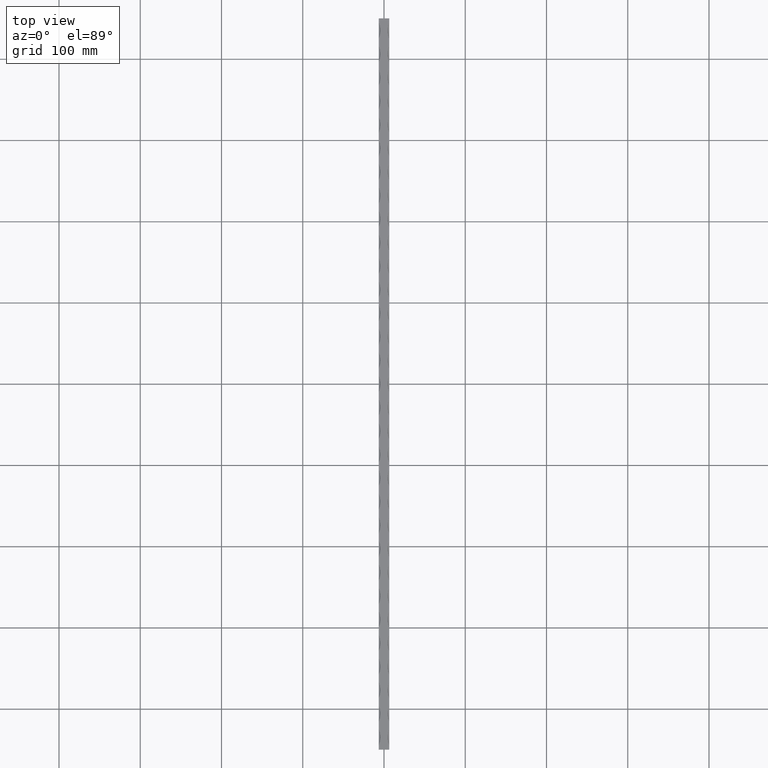
[diagram: clean part render]
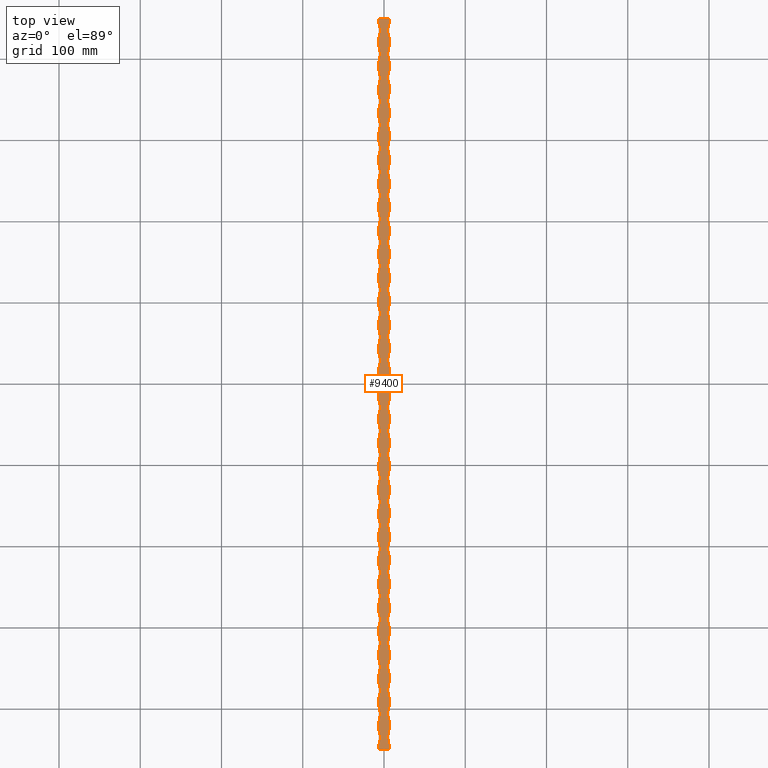
[diagram: same view with one face highlighted and labeled with its STEP entity id]
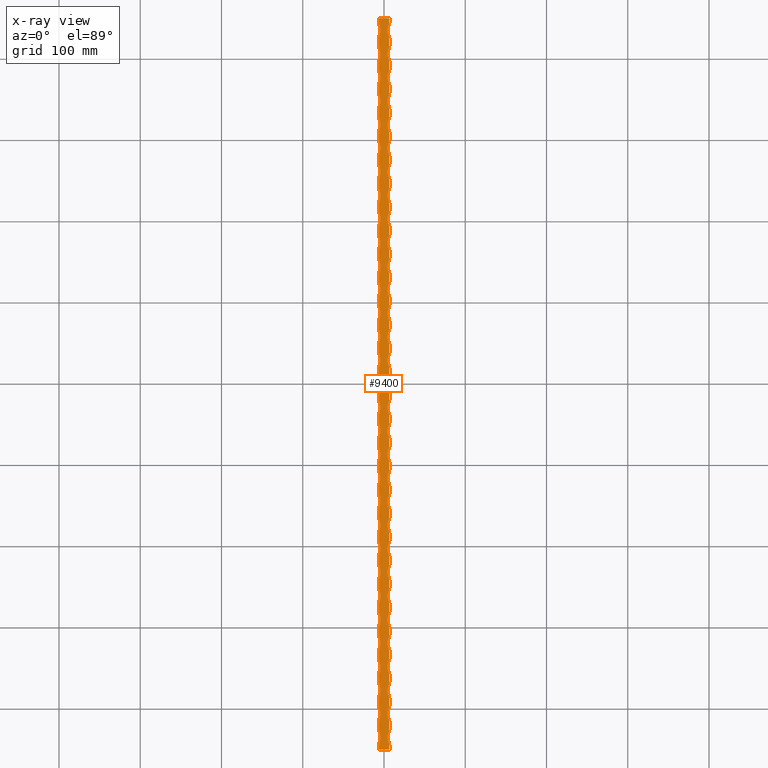
[diagram: x-ray of the same camera — body ghosted, the highlighted face saturated]
A machine part, top view. The second image highlights one B-rep face of the part: STEP entity #9400.
The next image is the same camera in x-ray: the body ghosted, the highlighted face saturated — about 0% of this face is hidden behind the body in this view.
In plain terms, the highlighted planar face has unit normal (0, 0, -1).
Its self-contained STEP definition (entity closure, byte-faithful):
#6 = EDGE_CURVE ( 'NONE', #3308, #13469, #11347, .T. ) ;
#26 = EDGE_CURVE ( 'NONE', #6821, #7548, #2968, .T. ) ;
#30 = ORIENTED_EDGE ( 'NONE', *, *, #2945, .F. ) ;
#34 = ORIENTED_EDGE ( 'NONE', *, *, #12832, .T. ) ;
#48 = EDGE_CURVE ( 'NONE', #6208, #6129, #516, .T. ) ;
#51 = VERTEX_POINT ( 'NONE', #12319 ) ;
#62 = ORIENTED_EDGE ( 'NONE', *, *, #13695, .T. ) ;
#64 = ORIENTED_EDGE ( 'NONE', *, *, #1786, .T. ) ;
#150 = CIRCLE ( 'NONE', #2797, 26.00000000000000000 ) ;
#159 = VERTEX_POINT ( 'NONE', #4299 ) ;
#168 = DIRECTION ( 'NONE',  ( -1.000000000000000000, 0.0000000000000000000, 0.0000000000000000000 ) ) ;
#175 = EDGE_CURVE ( 'NONE', #12181, #7802, #503, .T. ) ;
#191 = VERTEX_POINT ( 'NONE', #14675 ) ;
#216 = DIRECTION ( 'NONE',  ( 0.0000000000000000000, 0.0000000000000000000, -1.000000000000000000 ) ) ;
#226 = ORIENTED_EDGE ( 'NONE', *, *, #944, .F. ) ;
#256 = CARTESIAN_POINT ( 'NONE',  ( 30.50000000000000000, -377.0000000000000000, 6.500000000000000900 ) ) ;
#265 = EDGE_CURVE ( 'NONE', #3303, #10039, #674, .T. ) ;
#269 = LINE ( 'NONE', #2864, #1484 ) ;
#282 = EDGE_CURVE ( 'NONE', #7535, #1338, #1212, .T. ) ;
#287 = CARTESIAN_POINT ( 'NONE',  ( 6.499999999999976000, -68.00000000000000000, 6.500000000000000900 ) ) ;
#318 = CARTESIAN_POINT ( 'NONE',  ( -6.499999999999999100, 450.0000000000000000, 6.500000000000000900 ) ) ;
#349 = ORIENTED_EDGE ( 'NONE', *, *, #9062, .F. ) ;
#356 = VERTEX_POINT ( 'NONE', #1550 ) ;
#374 = CARTESIAN_POINT ( 'NONE',  ( -6.499999999999999100, 163.9999999999999700, 6.500000000000000900 ) ) ;
#378 = DIRECTION ( 'NONE',  ( -1.000000000000000000, 0.0000000000000000000, 0.0000000000000000000 ) ) ;
#382 = CIRCLE ( 'NONE', #9022, 26.00000000000000400 ) ;
#386 = VERTEX_POINT ( 'NONE', #10507 ) ;
#407 = DIRECTION ( 'NONE',  ( -1.000000000000000000, 0.0000000000000000000, 0.0000000000000000000 ) ) ;
#419 = EDGE_CURVE ( 'NONE', #4872, #14293, #3669, .T. ) ;
#424 = DIRECTION ( 'NONE',  ( -1.000000000000000000, 0.0000000000000000000, 0.0000000000000000000 ) ) ;
#425 = CIRCLE ( 'NONE', #12526, 26.00000000000000400 ) ;
#428 = CARTESIAN_POINT ( 'NONE',  ( -6.499999999999999100, 450.0000000000000000, 6.500000000000000900 ) ) ;
#435 = EDGE_CURVE ( 'NONE', #3523, #6093, #5821, .T. ) ;
#438 = ORIENTED_EDGE ( 'NONE', *, *, #8240, .T. ) ;
#466 = CARTESIAN_POINT ( 'NONE',  ( -6.499999999999999100, 396.0000000000000000, 6.500000000000000900 ) ) ;
#481 = LINE ( 'NONE', #10751, #9186 ) ;
#489 = LINE ( 'NONE', #1193, #2785 ) ;
#494 = CIRCLE ( 'NONE', #4430, 26.00000000000000400 ) ;
#498 = DIRECTION ( 'NONE',  ( -1.000000000000000000, 0.0000000000000000000, 0.0000000000000000000 ) ) ;
#503 = CIRCLE ( 'NONE', #10727, 26.00000000000000400 ) ;
#515 = ORIENTED_EDGE ( 'NONE', *, *, #12045, .T. ) ;
#516 = CIRCLE ( 'NONE', #5277, 26.00000000000000400 ) ;
#556 = DIRECTION ( 'NONE',  ( -0.0000000000000000000, -1.000000000000000000, -0.0000000000000000000 ) ) ;
#563 = EDGE_CURVE ( 'NONE', #9272, #13874, #6344, .T. ) ;
#578 = DIRECTION ( 'NONE',  ( 0.0000000000000000000, 0.0000000000000000000, -1.000000000000000000 ) ) ;
#586 = EDGE_CURVE ( 'NONE', #6441, #13149, #7595, .T. ) ;
#621 = CARTESIAN_POINT ( 'NONE',  ( -6.499999999999999100, -10.00000000000006800, 6.500000000000000900 ) ) ;
#625 = CARTESIAN_POINT ( 'NONE',  ( 6.500000000000002700, -425.0000000000000000, 6.500000000000000900 ) ) ;
#632 = ORIENTED_EDGE ( 'NONE', *, *, #7418, .T. ) ;
#633 = DIRECTION ( 'NONE',  ( 0.0000000000000000000, 0.0000000000000000000, -1.000000000000000000 ) ) ;
#637 = DIRECTION ( 'NONE',  ( -0.0000000000000000000, -1.000000000000000000, -0.0000000000000000000 ) ) ;
#643 = CIRCLE ( 'NONE', #12711, 26.00000000000000400 ) ;
#646 = CARTESIAN_POINT ( 'NONE',  ( 30.50000000000000400, -435.0000000000000000, 6.500000000000000900 ) ) ;
#657 = VECTOR ( 'NONE', #14390, 1000.000000000000000 ) ;
#670 = CIRCLE ( 'NONE', #14496, 26.00000000000000400 ) ;
#673 = DIRECTION ( 'NONE',  ( -0.0000000000000000000, -1.000000000000000000, -0.0000000000000000000 ) ) ;
#674 = CIRCLE ( 'NONE', #9483, 26.00000000000000400 ) ;
#682 = EDGE_CURVE ( 'NONE', #6897, #3207, #4210, .T. ) ;
#685 = ORIENTED_EDGE ( 'NONE', *, *, #8850, .T. ) ;
#694 = ORIENTED_EDGE ( 'NONE', *, *, #11997, .T. ) ;
#696 = CARTESIAN_POINT ( 'NONE',  ( 6.499999999999950300, 367.0000000000000000, 6.500000000000000900 ) ) ;
#700 = EDGE_CURVE ( 'NONE', #12218, #5356, #10802, .T. ) ;
#715 = EDGE_CURVE ( 'NONE', #14080, #14200, #5460, .T. ) ;
#716 = ORIENTED_EDGE ( 'NONE', *, *, #2216, .T. ) ;
#730 = DIRECTION ( 'NONE',  ( 0.0000000000000000000, 0.0000000000000000000, -1.000000000000000000 ) ) ;
#738 = ORIENTED_EDGE ( 'NONE', *, *, #7435, .T. ) ;
#741 = DIRECTION ( 'NONE',  ( -1.000000000000000000, 0.0000000000000000000, 0.0000000000000000000 ) ) ;
#786 = AXIS2_PLACEMENT_3D ( 'NONE', #13810, #4805, #11513 ) ;
#803 = LINE ( 'NONE', #14204, #12854 ) ;
#816 = EDGE_CURVE ( 'NONE', #4431, #2002, #494, .T. ) ;
#817 = VECTOR ( 'NONE', #10725, 1000.000000000000000 ) ;
#818 = CARTESIAN_POINT ( 'NONE',  ( 6.500000000000000900, -445.0000000000000000, 6.500000000000000900 ) ) ;
#823 = VERTEX_POINT ( 'NONE', #6196 ) ;
#831 = LINE ( 'NONE', #2841, #12887 ) ;
#838 = LINE ( 'NONE', #9973, #2067 ) ;
#870 = ORIENTED_EDGE ( 'NONE', *, *, #5156, .T. ) ;
#895 = ORIENTED_EDGE ( 'NONE', *, *, #11875, .T. ) ;
#898 = VERTEX_POINT ( 'NONE', #11219 ) ;
#938 = ORIENTED_EDGE ( 'NONE', *, *, #715, .T. ) ;
#943 = DIRECTION ( 'NONE',  ( 0.0000000000000000000, 0.0000000000000000000, -1.000000000000000000 ) ) ;
#944 = EDGE_CURVE ( 'NONE', #159, #5995, #7223, .T. ) ;
#947 = DIRECTION ( 'NONE',  ( 0.0000000000000000000, 0.0000000000000000000, -1.000000000000000000 ) ) ;
#955 = DIRECTION ( 'NONE',  ( -0.0000000000000000000, -1.000000000000000000, -0.0000000000000000000 ) ) ;
#966 = CARTESIAN_POINT ( 'NONE',  ( 30.49999999999999600, -348.0000000000000600, 6.500000000000000900 ) ) ;
#984 = EDGE_CURVE ( 'NONE', #10090, #10426, #838, .T. ) ;
#993 = DIRECTION ( 'NONE',  ( 0.0000000000000000000, 0.0000000000000000000, -1.000000000000000000 ) ) ;
#994 = DIRECTION ( 'NONE',  ( -1.000000000000000000, 0.0000000000000000000, 0.0000000000000000000 ) ) ;
#1010 = CARTESIAN_POINT ( 'NONE',  ( -6.499999999999999100, 450.0000000000000000, 6.500000000000000900 ) ) ;
#1051 = CIRCLE ( 'NONE', #10487, 26.00000000000000400 ) ;
#1068 = DIRECTION ( 'NONE',  ( -1.000000000000000000, 0.0000000000000000000, 0.0000000000000000000 ) ) ;
#1076 = VERTEX_POINT ( 'NONE', #10823 ) ;
#1082 = VERTEX_POINT ( 'NONE', #10871 ) ;
#1083 = CARTESIAN_POINT ( 'NONE',  ( -6.499999999999999100, 309.0000000000000000, 6.500000000000000900 ) ) ;
#1099 = CIRCLE ( 'NONE', #2788, 26.00000000000000000 ) ;
#1120 = ORIENTED_EDGE ( 'NONE', *, *, #13658, .T. ) ;
#1130 = CIRCLE ( 'NONE', #8251, 26.00000000000000400 ) ;
#1139 = CARTESIAN_POINT ( 'NONE',  ( -6.499999999999999100, 450.0000000000000000, 6.500000000000000900 ) ) ;
#1149 = ORIENTED_EDGE ( 'NONE', *, *, #6739, .T. ) ;
#1153 = CARTESIAN_POINT ( 'NONE',  ( 6.500000000000002700, -309.0000000000000000, 6.500000000000000900 ) ) ;
#1155 = CARTESIAN_POINT ( 'NONE',  ( -30.49999999999996400, -174.0000000000000300, 6.500000000000000900 ) ) ;
#1162 = ORIENTED_EDGE ( 'NONE', *, *, #3071, .T. ) ;
#1193 = CARTESIAN_POINT ( 'NONE',  ( 6.500000000000000900, 450.0000000000000000, 6.500000000000000900 ) ) ;
#1206 = EDGE_CURVE ( 'NONE', #9650, #7605, #7045, .T. ) ;
#1212 = CIRCLE ( 'NONE', #14290, 26.00000000000000400 ) ;
#1220 = CARTESIAN_POINT ( 'NONE',  ( 30.49999999999996400, 203.0000000000000000, 6.500000000000000900 ) ) ;
#1228 = EDGE_CURVE ( 'NONE', #7115, #2035, #1886, .T. ) ;
#1245 = DIRECTION ( 'NONE',  ( -0.0000000000000000000, -1.000000000000000000, -0.0000000000000000000 ) ) ;
#1265 = CARTESIAN_POINT ( 'NONE',  ( 30.49999999999995700, 290.0000000000000600, 6.500000000000000900 ) ) ;
#1277 = LINE ( 'NONE', #2230, #8380 ) ;
#1283 = CARTESIAN_POINT ( 'NONE',  ( -6.499999999999972500, 10.00000000000000000, 6.500000000000000900 ) ) ;
#1293 = EDGE_CURVE ( 'NONE', #14138, #10039, #6691, .T. ) ;
#1300 = CIRCLE ( 'NONE', #786, 26.00000000000000400 ) ;
#1313 = DIRECTION ( 'NONE',  ( -1.000000000000000000, 0.0000000000000000000, 0.0000000000000000000 ) ) ;
#1338 = VERTEX_POINT ( 'NONE', #3518 ) ;
#1373 = VECTOR ( 'NONE', #4246, 1000.000000000000000 ) ;
#1398 = CARTESIAN_POINT ( 'NONE',  ( -30.49999999999996100, -203.0000000000000000, 6.500000000000000900 ) ) ;
#1406 = AXIS2_PLACEMENT_3D ( 'NONE', #11432, #6891, #168 ) ;
#1469 = DIRECTION ( 'NONE',  ( -1.000000000000000000, 0.0000000000000000000, 0.0000000000000000000 ) ) ;
#1484 = VECTOR ( 'NONE', #556, 1000.000000000000000 ) ;
#1487 = AXIS2_PLACEMENT_3D ( 'NONE', #4166, #947, #1833 ) ;
#1502 = CARTESIAN_POINT ( 'NONE',  ( -6.499999999999981300, 155.0000000000000300, 6.500000000000000900 ) ) ;
#1520 = VERTEX_POINT ( 'NONE', #14464 ) ;
#1528 = VECTOR ( 'NONE', #5473, 1000.000000000000000 ) ;
#1550 = CARTESIAN_POINT ( 'NONE',  ( 6.499999999999999100, -416.0000000000000600, 6.500000000000000900 ) ) ;
#1553 = DIRECTION ( 'NONE',  ( 0.0000000000000000000, 0.0000000000000000000, -1.000000000000000000 ) ) ;
#1554 = CARTESIAN_POINT ( 'NONE',  ( -6.499999999999958300, -222.0000000000000000, 6.500000000000000900 ) ) ;
#1557 = CARTESIAN_POINT ( 'NONE',  ( -30.49999999999997900, 58.00000000000000000, 6.500000000000000900 ) ) ;
#1601 = ORIENTED_EDGE ( 'NONE', *, *, #10075, .T. ) ;
#1636 = CARTESIAN_POINT ( 'NONE',  ( -6.499999999999999100, 47.99999999999994300, 6.500000000000000900 ) ) ;
#1641 = DIRECTION ( 'NONE',  ( -1.000000000000000000, 0.0000000000000000000, 0.0000000000000000000 ) ) ;
#1646 = CARTESIAN_POINT ( 'NONE',  ( 6.500000000000000900, 450.0000000000000000, 6.500000000000000900 ) ) ;
#1667 = DIRECTION ( 'NONE',  ( -1.000000000000000000, 0.0000000000000000000, 0.0000000000000000000 ) ) ;
#1689 = EDGE_CURVE ( 'NONE', #7293, #6897, #13932, .T. ) ;
#1751 = CARTESIAN_POINT ( 'NONE',  ( 6.499999999999999100, -280.0000000000000000, 6.500000000000000900 ) ) ;
#1755 = VERTEX_POINT ( 'NONE', #12079 ) ;
#1777 = DIRECTION ( 'NONE',  ( -1.000000000000000000, 0.0000000000000000000, 0.0000000000000000000 ) ) ;
#1786 = EDGE_CURVE ( 'NONE', #5608, #14080, #14632, .T. ) ;
#1819 = DIRECTION ( 'NONE',  ( 0.0000000000000000000, 0.0000000000000000000, -1.000000000000000000 ) ) ;
#1827 = AXIS2_PLACEMENT_3D ( 'NONE', #1874, #12049, #13041 ) ;
#1833 = DIRECTION ( 'NONE',  ( -1.000000000000000000, 0.0000000000000000000, 0.0000000000000000000 ) ) ;
#1865 = VERTEX_POINT ( 'NONE', #3223 ) ;
#1871 = VERTEX_POINT ( 'NONE', #5352 ) ;
#1874 = CARTESIAN_POINT ( 'NONE',  ( -30.49999999999998900, 261.0000000000000000, 6.500000000000000900 ) ) ;
#1886 = CIRCLE ( 'NONE', #5952, 26.00000000000000400 ) ;
#1922 = ORIENTED_EDGE ( 'NONE', *, *, #4550, .T. ) ;
#1948 = DIRECTION ( 'NONE',  ( -0.0000000000000000000, -1.000000000000000000, -0.0000000000000000000 ) ) ;
#1949 = ORIENTED_EDGE ( 'NONE', *, *, #10649, .T. ) ;
#1955 = CARTESIAN_POINT ( 'NONE',  ( 6.499999999999962700, 164.0000000000000000, 6.500000000000000900 ) ) ;
#1965 = ORIENTED_EDGE ( 'NONE', *, *, #10035, .F. ) ;
#1978 = ORIENTED_EDGE ( 'NONE', *, *, #10012, .T. ) ;
#2002 = VERTEX_POINT ( 'NONE', #6181 ) ;
#2003 = CIRCLE ( 'NONE', #11724, 26.00000000000000400 ) ;
#2032 = CIRCLE ( 'NONE', #12053, 26.00000000000000400 ) ;
#2035 = VERTEX_POINT ( 'NONE', #14100 ) ;
#2036 = ORIENTED_EDGE ( 'NONE', *, *, #14300, .F. ) ;
#2048 = AXIS2_PLACEMENT_3D ( 'NONE', #7358, #578, #8515 ) ;
#2051 = ORIENTED_EDGE ( 'NONE', *, *, #11811, .F. ) ;
#2067 = VECTOR ( 'NONE', #3133, 1000.000000000000000 ) ;
#2075 = CARTESIAN_POINT ( 'NONE',  ( 6.499999999999996400, -387.0000000000000000, 6.500000000000000900 ) ) ;
#2089 = CARTESIAN_POINT ( 'NONE',  ( 6.499999999999999100, 444.9999999999998900, 6.500000000000000900 ) ) ;
#2099 = CARTESIAN_POINT ( 'NONE',  ( -6.499999999999999100, 450.0000000000000000, 6.500000000000000900 ) ) ;
#2107 = DIRECTION ( 'NONE',  ( -0.0000000000000000000, -1.000000000000000000, -0.0000000000000000000 ) ) ;
#2109 = CIRCLE ( 'NONE', #5994, 26.00000000000000700 ) ;
#2122 = CARTESIAN_POINT ( 'NONE',  ( 6.499999999999955600, 280.0000000000000000, 6.500000000000000900 ) ) ;
#2147 = CARTESIAN_POINT ( 'NONE',  ( -6.499999999999976000, 68.00000000000000000, 6.500000000000000900 ) ) ;
#2160 = EDGE_CURVE ( 'NONE', #9326, #6821, #4003, .T. ) ;
#2178 = DIRECTION ( 'NONE',  ( 0.0000000000000000000, 0.0000000000000000000, -1.000000000000000000 ) ) ;
#2179 = AXIS2_PLACEMENT_3D ( 'NONE', #4812, #216, #6940 ) ;
#2208 = EDGE_CURVE ( 'NONE', #9271, #9432, #5245, .T. ) ;
#2216 = EDGE_CURVE ( 'NONE', #6206, #11996, #9713, .T. ) ;
#2219 = VERTEX_POINT ( 'NONE', #5624 ) ;
#2227 = VECTOR ( 'NONE', #8471, 1000.000000000000000 ) ;
#2230 = CARTESIAN_POINT ( 'NONE',  ( -6.499999999999999100, 450.0000000000000000, 6.500000000000000900 ) ) ;
#2273 = DIRECTION ( 'NONE',  ( -1.000000000000000000, 0.0000000000000000000, 0.0000000000000000000 ) ) ;
#2305 = CIRCLE ( 'NONE', #12046, 26.00000000000000400 ) ;
#2364 = VERTEX_POINT ( 'NONE', #6851 ) ;
#2409 = EDGE_CURVE ( 'NONE', #823, #9393, #7725, .T. ) ;
#2434 = CARTESIAN_POINT ( 'NONE',  ( 6.500000000000000900, 450.0000000000000000, 6.500000000000000900 ) ) ;
#2465 = AXIS2_PLACEMENT_3D ( 'NONE', #3396, #4429, #10234 ) ;
#2476 = DIRECTION ( 'NONE',  ( 0.0000000000000000000, 0.0000000000000000000, -1.000000000000000000 ) ) ;
#2479 = CIRCLE ( 'NONE', #8572, 26.00000000000000400 ) ;
#2502 = CARTESIAN_POINT ( 'NONE',  ( 30.49999999999997500, 29.00000000000000000, 6.500000000000000900 ) ) ;
#2508 = LINE ( 'NONE', #2936, #11241 ) ;
#2530 = EDGE_CURVE ( 'NONE', #4698, #10911, #14097, .T. ) ;
#2544 = CARTESIAN_POINT ( 'NONE',  ( -6.499999999999999100, -450.0000000000000000, 6.500000000000000900 ) ) ;
#2549 = DIRECTION ( 'NONE',  ( -0.0000000000000000000, -1.000000000000000000, -0.0000000000000000000 ) ) ;
#2555 = CARTESIAN_POINT ( 'NONE',  ( -6.499999999999999100, 450.0000000000000000, 6.500000000000000900 ) ) ;
#2579 = CIRCLE ( 'NONE', #9500, 26.00000000000000400 ) ;
#2580 = ORIENTED_EDGE ( 'NONE', *, *, #7067, .T. ) ;
#2604 = CIRCLE ( 'NONE', #13379, 26.00000000000000700 ) ;
#2614 = CARTESIAN_POINT ( 'NONE',  ( -30.49999999999995400, -319.0000000000000000, 6.500000000000000900 ) ) ;
#2617 = ORIENTED_EDGE ( 'NONE', *, *, #13821, .F. ) ;
#2619 = DIRECTION ( 'NONE',  ( 0.0000000000000000000, 0.0000000000000000000, -1.000000000000000000 ) ) ;
#2620 = EDGE_CURVE ( 'NONE', #3207, #1082, #11285, .T. ) ;
#2631 = AXIS2_PLACEMENT_3D ( 'NONE', #6430, #1819, #14208 ) ;
#2692 = CARTESIAN_POINT ( 'NONE',  ( -6.499999999999999100, 445.0000000000000000, 6.500000000000000900 ) ) ;
#2747 = VERTEX_POINT ( 'NONE', #13720 ) ;
#2772 = ORIENTED_EDGE ( 'NONE', *, *, #6546, .T. ) ;
#2774 = CARTESIAN_POINT ( 'NONE',  ( 6.499999999999977800, -97.00000000000000000, 6.500000000000000900 ) ) ;
#2785 = VECTOR ( 'NONE', #1245, 1000.000000000000000 ) ;
#2788 = AXIS2_PLACEMENT_3D ( 'NONE', #10243, #6854, #9066 ) ;
#2797 = AXIS2_PLACEMENT_3D ( 'NONE', #6304, #9557, #9758 ) ;
#2808 = EDGE_CURVE ( 'NONE', #3077, #12634, #5430, .T. ) ;
#2821 = CARTESIAN_POINT ( 'NONE',  ( 6.500000000000000900, 450.0000000000000000, 6.500000000000000900 ) ) ;
#2836 = ORIENTED_EDGE ( 'NONE', *, *, #12669, .T. ) ;
#2841 = CARTESIAN_POINT ( 'NONE',  ( -6.499999999999999100, 450.0000000000000000, 6.500000000000000900 ) ) ;
#2842 = DIRECTION ( 'NONE',  ( 0.0000000000000000000, 0.0000000000000000000, -1.000000000000000000 ) ) ;
#2864 = CARTESIAN_POINT ( 'NONE',  ( 6.500000000000000900, 450.0000000000000000, 6.500000000000000900 ) ) ;
#2884 = DIRECTION ( 'NONE',  ( -0.0000000000000000000, -1.000000000000000000, -0.0000000000000000000 ) ) ;
#2887 = VERTEX_POINT ( 'NONE', #5827 ) ;
#2891 = EDGE_CURVE ( 'NONE', #2364, #11215, #2032, .T. ) ;
#2928 = VERTEX_POINT ( 'NONE', #1502 ) ;
#2936 = CARTESIAN_POINT ( 'NONE',  ( 6.500000000000000900, 450.0000000000000000, 6.500000000000000900 ) ) ;
#2940 = VECTOR ( 'NONE', #10288, 1000.000000000000000 ) ;
#2945 = EDGE_CURVE ( 'NONE', #356, #5566, #14606, .T. ) ;
#2968 = CIRCLE ( 'NONE', #12586, 26.00000000000000000 ) ;
#2974 = CARTESIAN_POINT ( 'NONE',  ( -6.499999999999999100, 367.0000000000000000, 6.500000000000000900 ) ) ;
#3050 = ORIENTED_EDGE ( 'NONE', *, *, #5105, .T. ) ;
#3071 = EDGE_CURVE ( 'NONE', #9230, #14250, #3075, .T. ) ;
#3075 = LINE ( 'NONE', #8513, #7166 ) ;
#3077 = VERTEX_POINT ( 'NONE', #14043 ) ;
#3079 = CARTESIAN_POINT ( 'NONE',  ( -6.499999999999963600, -135.0000000000000000, 6.500000000000000900 ) ) ;
#3091 = CARTESIAN_POINT ( 'NONE',  ( -6.499999999999999100, 450.0000000000000000, 6.500000000000000900 ) ) ;
#3114 = ORIENTED_EDGE ( 'NONE', *, *, #48, .T. ) ;
#3133 = DIRECTION ( 'NONE',  ( -0.0000000000000000000, -1.000000000000000000, -0.0000000000000000000 ) ) ;
#3140 = VECTOR ( 'NONE', #9870, 1000.000000000000000 ) ;
#3150 = ORIENTED_EDGE ( 'NONE', *, *, #7649, .F. ) ;
#3164 = VERTEX_POINT ( 'NONE', #621 ) ;
#3193 = CARTESIAN_POINT ( 'NONE',  ( -6.499999999999946700, -396.0000000000000000, 6.500000000000000900 ) ) ;
#3207 = VERTEX_POINT ( 'NONE', #6506 ) ;
#3222 = DIRECTION ( 'NONE',  ( -0.0000000000000000000, -1.000000000000000000, -0.0000000000000000000 ) ) ;
#3223 = CARTESIAN_POINT ( 'NONE',  ( 6.499999999999999100, -367.0000000000000000, 6.500000000000000900 ) ) ;
#3251 = DIRECTION ( 'NONE',  ( 0.0000000000000000000, 0.0000000000000000000, -1.000000000000000000 ) ) ;
#3253 = CARTESIAN_POINT ( 'NONE',  ( 6.500000000000002700, -338.0000000000000000, 6.500000000000000900 ) ) ;
#3256 = EDGE_CURVE ( 'NONE', #7115, #6129, #8431, .T. ) ;
#3273 = EDGE_CURVE ( 'NONE', #6206, #2035, #7353, .T. ) ;
#3287 = LINE ( 'NONE', #2099, #10808 ) ;
#3303 = VERTEX_POINT ( 'NONE', #2122 ) ;
#3308 = VERTEX_POINT ( 'NONE', #5565 ) ;
#3313 = CARTESIAN_POINT ( 'NONE',  ( -30.49999999999997500, 29.00000000000000000, 6.500000000000000900 ) ) ;
#3321 = CARTESIAN_POINT ( 'NONE',  ( 6.500000000000000900, 450.0000000000000000, 6.500000000000000900 ) ) ;
#3378 = DIRECTION ( 'NONE',  ( -1.000000000000000000, 0.0000000000000000000, 0.0000000000000000000 ) ) ;
#3393 = ORIENTED_EDGE ( 'NONE', *, *, #14218, .T. ) ;
#3396 = CARTESIAN_POINT ( 'NONE',  ( -6.499999999999999100, 450.0000000000000000, 6.500000000000000900 ) ) ;
#3397 = CARTESIAN_POINT ( 'NONE',  ( 6.499999999999959100, 222.0000000000000000, 6.500000000000000900 ) ) ;
#3400 = EDGE_CURVE ( 'NONE', #3308, #11417, #10750, .T. ) ;
#3402 = DIRECTION ( 'NONE',  ( -1.000000000000000000, 0.0000000000000000000, 0.0000000000000000000 ) ) ;
#3415 = LINE ( 'NONE', #11102, #5412 ) ;
#3426 = EDGE_CURVE ( 'NONE', #9460, #4472, #10200, .T. ) ;
#3474 = DIRECTION ( 'NONE',  ( -1.000000000000000000, 0.0000000000000000000, 0.0000000000000000000 ) ) ;
#3513 = DIRECTION ( 'NONE',  ( -1.000000000000000000, 0.0000000000000000000, 0.0000000000000000000 ) ) ;
#3518 = CARTESIAN_POINT ( 'NONE',  ( 6.499999999999999100, 212.9999999999999400, 6.500000000000000900 ) ) ;
#3519 = VERTEX_POINT ( 'NONE', #2774 ) ;
#3522 = EDGE_CURVE ( 'NONE', #13813, #4121, #425, .T. ) ;
#3523 = VERTEX_POINT ( 'NONE', #10921 ) ;
#3545 = VERTEX_POINT ( 'NONE', #9790 ) ;
#3564 = ORIENTED_EDGE ( 'NONE', *, *, #3772, .T. ) ;
#3572 = DIRECTION ( 'NONE',  ( 0.0000000000000000000, 0.0000000000000000000, -1.000000000000000000 ) ) ;
#3577 = EDGE_CURVE ( 'NONE', #7731, #5566, #1130, .T. ) ;
#3579 = ORIENTED_EDGE ( 'NONE', *, *, #3426, .T. ) ;
#3589 = CARTESIAN_POINT ( 'NONE',  ( -6.499999999999999100, 450.0000000000000000, 6.500000000000000900 ) ) ;
#3623 = ORIENTED_EDGE ( 'NONE', *, *, #8376, .T. ) ;
#3625 = DIRECTION ( 'NONE',  ( -0.0000000000000000000, -1.000000000000000000, -0.0000000000000000000 ) ) ;
#3654 = VECTOR ( 'NONE', #8767, 1000.000000000000000 ) ;
#3655 = VERTEX_POINT ( 'NONE', #9642 ) ;
#3661 = DIRECTION ( 'NONE',  ( -1.000000000000000000, 0.0000000000000000000, 0.0000000000000000000 ) ) ;
#3669 = CIRCLE ( 'NONE', #2048, 26.00000000000000400 ) ;
#3679 = DIRECTION ( 'NONE',  ( 0.0000000000000000000, 0.0000000000000000000, -1.000000000000000000 ) ) ;
#3684 = EDGE_CURVE ( 'NONE', #4235, #9537, #269, .T. ) ;
#3702 = EDGE_CURVE ( 'NONE', #3077, #12808, #14248, .T. ) ;
#3720 = VECTOR ( 'NONE', #673, 1000.000000000000000 ) ;
#3723 = ORIENTED_EDGE ( 'NONE', *, *, #12408, .T. ) ;
#3759 = DIRECTION ( 'NONE',  ( -1.000000000000000000, 0.0000000000000000000, 0.0000000000000000000 ) ) ;
#3766 = DIRECTION ( 'NONE',  ( 1.000000000000000000, 0.0000000000000000000, 0.0000000000000000000 ) ) ;
#3772 = EDGE_CURVE ( 'NONE', #7548, #191, #6284, .T. ) ;
#3776 = CARTESIAN_POINT ( 'NONE',  ( 6.500000000000000900, 450.0000000000000000, 6.500000000000000900 ) ) ;
#3783 = CARTESIAN_POINT ( 'NONE',  ( -6.499999999999999100, 134.9999999999999700, 6.500000000000000900 ) ) ;
#3858 = DIRECTION ( 'NONE',  ( -1.000000000000000000, 0.0000000000000000000, 0.0000000000000000000 ) ) ;
#3876 = ORIENTED_EDGE ( 'NONE', *, *, #13505, .F. ) ;
#3910 = DIRECTION ( 'NONE',  ( -0.0000000000000000000, -1.000000000000000000, -0.0000000000000000000 ) ) ;
#3918 = DIRECTION ( 'NONE',  ( -0.0000000000000000000, -1.000000000000000000, -0.0000000000000000000 ) ) ;
#3924 = CARTESIAN_POINT ( 'NONE',  ( -6.499999999999999100, 450.0000000000000000, 6.500000000000000900 ) ) ;
#3939 = EDGE_CURVE ( 'NONE', #9393, #10765, #8048, .T. ) ;
#3946 = DIRECTION ( 'NONE',  ( 0.0000000000000000000, 0.0000000000000000000, -1.000000000000000000 ) ) ;
#3950 = DIRECTION ( 'NONE',  ( -0.0000000000000000000, -1.000000000000000000, -0.0000000000000000000 ) ) ;
#3958 = VERTEX_POINT ( 'NONE', #2544 ) ;
#3978 = DIRECTION ( 'NONE',  ( -0.0000000000000000000, -1.000000000000000000, -0.0000000000000000000 ) ) ;
#3981 = CARTESIAN_POINT ( 'NONE',  ( 30.49999999999997200, 87.00000000000001400, 6.500000000000000900 ) ) ;
#3984 = CARTESIAN_POINT ( 'NONE',  ( -6.499999999999999100, -155.0000000000001100, 6.500000000000000900 ) ) ;
#4003 = LINE ( 'NONE', #5391, #11991 ) ;
#4007 = LINE ( 'NONE', #10639, #7384 ) ;
#4045 = EDGE_CURVE ( 'NONE', #898, #2002, #10014, .T. ) ;
#4047 = EDGE_CURVE ( 'NONE', #2747, #9650, #11255, .T. ) ;
#4058 = DIRECTION ( 'NONE',  ( 0.0000000000000000000, 0.0000000000000000000, -1.000000000000000000 ) ) ;
#4086 = DIRECTION ( 'NONE',  ( -1.000000000000000000, 0.0000000000000000000, 0.0000000000000000000 ) ) ;
#4106 = CIRCLE ( 'NONE', #6240, 26.00000000000000400 ) ;
#4121 = VERTEX_POINT ( 'NONE', #7370 ) ;
#4130 = VECTOR ( 'NONE', #3766, 1000.000000000000000 ) ;
#4131 = CARTESIAN_POINT ( 'NONE',  ( 30.49999999999998200, -87.00000000000001400, 6.500000000000000900 ) ) ;
#4145 = DIRECTION ( 'NONE',  ( -1.000000000000000000, 0.0000000000000000000, 0.0000000000000000000 ) ) ;
#4147 = VECTOR ( 'NONE', #13340, 1000.000000000000000 ) ;
#4149 = ORIENTED_EDGE ( 'NONE', *, *, #3400, .T. ) ;
#4156 = VECTOR ( 'NONE', #13731, 1000.000000000000000 ) ;
#4166 = CARTESIAN_POINT ( 'NONE',  ( -30.49999999999995700, -290.0000000000000600, 6.500000000000000900 ) ) ;
#4175 = DIRECTION ( 'NONE',  ( -0.0000000000000000000, -1.000000000000000000, -0.0000000000000000000 ) ) ;
#4193 = VECTOR ( 'NONE', #8393, 1000.000000000000000 ) ;
#4210 = LINE ( 'NONE', #5959, #9029 ) ;
#4235 = VERTEX_POINT ( 'NONE', #11159 ) ;
#4246 = DIRECTION ( 'NONE',  ( -0.0000000000000000000, -1.000000000000000000, -0.0000000000000000000 ) ) ;
#4299 = CARTESIAN_POINT ( 'NONE',  ( 6.499999999999957400, 251.0000000000000000, 6.500000000000000900 ) ) ;
#4305 = VERTEX_POINT ( 'NONE', #2089 ) ;
#4306 = CIRCLE ( 'NONE', #10412, 26.00000000000000000 ) ;
#4328 = ORIENTED_EDGE ( 'NONE', *, *, #435, .T. ) ;
#4361 = CARTESIAN_POINT ( 'NONE',  ( 30.50000000000000000, -406.0000000000000000, 6.500000000000000900 ) ) ;
#4365 = ORIENTED_EDGE ( 'NONE', *, *, #5545, .T. ) ;
#4369 = CARTESIAN_POINT ( 'NONE',  ( -6.499999999999954700, -280.0000000000000000, 6.500000000000000900 ) ) ;
#4372 = VECTOR ( 'NONE', #5279, 1000.000000000000000 ) ;
#4380 = DIRECTION ( 'NONE',  ( 0.0000000000000000000, 0.0000000000000000000, -1.000000000000000000 ) ) ;
#4389 = DIRECTION ( 'NONE',  ( -0.0000000000000000000, -1.000000000000000000, -0.0000000000000000000 ) ) ;
#4426 = VERTEX_POINT ( 'NONE', #9214 ) ;
#4427 = DIRECTION ( 'NONE',  ( -1.000000000000000000, 0.0000000000000000000, 0.0000000000000000000 ) ) ;
#4429 = DIRECTION ( 'NONE',  ( 0.0000000000000000000, 0.0000000000000000000, -1.000000000000000000 ) ) ;
#4430 = AXIS2_PLACEMENT_3D ( 'NONE', #14162, #11760, #1667 ) ;
#4431 = VERTEX_POINT ( 'NONE', #6014 ) ;
#4435 = CARTESIAN_POINT ( 'NONE',  ( -30.50000000000000000, 435.0000000000000000, 6.500000000000000900 ) ) ;
#4438 = VERTEX_POINT ( 'NONE', #10806 ) ;
#4472 = VERTEX_POINT ( 'NONE', #5033 ) ;
#4538 = DIRECTION ( 'NONE',  ( 0.0000000000000000000, 0.0000000000000000000, -1.000000000000000000 ) ) ;
#4550 = EDGE_CURVE ( 'NONE', #6093, #12218, #4672, .T. ) ;
#4569 = CARTESIAN_POINT ( 'NONE',  ( -6.499999999999974200, 39.00000000000000000, 6.500000000000000900 ) ) ;
#4581 = DIRECTION ( 'NONE',  ( -0.0000000000000000000, -1.000000000000000000, -0.0000000000000000000 ) ) ;
#4587 = DIRECTION ( 'NONE',  ( -1.000000000000000000, 0.0000000000000000000, 0.0000000000000000000 ) ) ;
#4630 = VERTEX_POINT ( 'NONE', #2075 ) ;
#4650 = CARTESIAN_POINT ( 'NONE',  ( -6.499999999999949400, -367.0000000000000000, 6.500000000000000900 ) ) ;
#4672 = CIRCLE ( 'NONE', #8660, 26.00000000000000400 ) ;
#4684 = ORIENTED_EDGE ( 'NONE', *, *, #7004, .F. ) ;
#4698 = VERTEX_POINT ( 'NONE', #4369 ) ;
#4722 = CARTESIAN_POINT ( 'NONE',  ( -6.499999999999999100, 450.0000000000000000, 6.500000000000000900 ) ) ;
#4780 = CIRCLE ( 'NONE', #13498, 26.00000000000000400 ) ;
#4805 = DIRECTION ( 'NONE',  ( 0.0000000000000000000, 0.0000000000000000000, -1.000000000000000000 ) ) ;
#4812 = CARTESIAN_POINT ( 'NONE',  ( -30.49999999999999300, 319.0000000000000000, 6.500000000000000900 ) ) ;
#4861 = DIRECTION ( 'NONE',  ( -1.000000000000000000, 0.0000000000000000000, 0.0000000000000000000 ) ) ;
#4866 = ORIENTED_EDGE ( 'NONE', *, *, #8800, .T. ) ;
#4870 = ORIENTED_EDGE ( 'NONE', *, *, #7209, .F. ) ;
#4872 = VERTEX_POINT ( 'NONE', #696 ) ;
#4906 = VECTOR ( 'NONE', #5654, 1000.000000000000000 ) ;
#4924 = CARTESIAN_POINT ( 'NONE',  ( 6.500000000000002700, 357.9999999999999400, 6.500000000000000900 ) ) ;
#4929 = DIRECTION ( 'NONE',  ( -1.000000000000000000, 0.0000000000000000000, 0.0000000000000000000 ) ) ;
#4981 = CARTESIAN_POINT ( 'NONE',  ( 6.500000000000000900, 450.0000000000000000, 6.500000000000000900 ) ) ;
#4985 = VERTEX_POINT ( 'NONE', #7093 ) ;
#5013 = CARTESIAN_POINT ( 'NONE',  ( -6.499999999999999100, 450.0000000000000000, 6.500000000000000900 ) ) ;
#5019 = ORIENTED_EDGE ( 'NONE', *, *, #7672, .F. ) ;
#5029 = LINE ( 'NONE', #7244, #9834 ) ;
#5030 = CARTESIAN_POINT ( 'NONE',  ( -6.499999999999961800, -164.0000000000000000, 6.500000000000000900 ) ) ;
#5033 = CARTESIAN_POINT ( 'NONE',  ( -6.499999999999999100, -445.0000000000001100, 6.500000000000000900 ) ) ;
#5041 = CARTESIAN_POINT ( 'NONE',  ( -6.499999999999999100, 450.0000000000000000, 6.500000000000000900 ) ) ;
#5046 = VECTOR ( 'NONE', #955, 1000.000000000000000 ) ;
#5093 = CARTESIAN_POINT ( 'NONE',  ( -6.499999999999999100, -39.00000000000007800, 6.500000000000000900 ) ) ;
#5105 = EDGE_CURVE ( 'NONE', #1082, #12879, #13656, .T. ) ;
#5156 = EDGE_CURVE ( 'NONE', #10765, #6562, #13837, .T. ) ;
#5179 = VECTOR ( 'NONE', #4389, 1000.000000000000000 ) ;
#5192 = CARTESIAN_POINT ( 'NONE',  ( -6.499999999999999100, 450.0000000000000000, 6.500000000000000900 ) ) ;
#5202 = AXIS2_PLACEMENT_3D ( 'NONE', #9447, #2619, #3759 ) ;
#5244 = CARTESIAN_POINT ( 'NONE',  ( -30.49999999999996400, -145.0000000000000300, 6.500000000000000900 ) ) ;
#5245 = CIRCLE ( 'NONE', #6533, 26.00000000000000400 ) ;
#5251 = ORIENTED_EDGE ( 'NONE', *, *, #26, .T. ) ;
#5275 = DIRECTION ( 'NONE',  ( -0.0000000000000000000, -1.000000000000000000, -0.0000000000000000000 ) ) ;
#5277 = AXIS2_PLACEMENT_3D ( 'NONE', #11305, #6625, #12368 ) ;
#5279 = DIRECTION ( 'NONE',  ( -0.0000000000000000000, -1.000000000000000000, -0.0000000000000000000 ) ) ;
#5286 = CARTESIAN_POINT ( 'NONE',  ( -6.499999999999999100, 450.0000000000000000, 6.500000000000000900 ) ) ;
#5287 = ORIENTED_EDGE ( 'NONE', *, *, #3273, .F. ) ;
#5291 = CARTESIAN_POINT ( 'NONE',  ( -30.49999999999998600, 203.0000000000000000, 6.500000000000000900 ) ) ;
#5335 = VERTEX_POINT ( 'NONE', #13427 ) ;
#5346 = DIRECTION ( 'NONE',  ( 0.0000000000000000000, 0.0000000000000000000, -1.000000000000000000 ) ) ;
#5350 = ORIENTED_EDGE ( 'NONE', *, *, #9611, .F. ) ;
#5351 = DIRECTION ( 'NONE',  ( 0.0000000000000000000, 0.0000000000000000000, -1.000000000000000000 ) ) ;
#5352 = CARTESIAN_POINT ( 'NONE',  ( 6.499999999999979600, -126.0000000000000000, 6.500000000000000900 ) ) ;
#5356 = VERTEX_POINT ( 'NONE', #2147 ) ;
#5370 = ORIENTED_EDGE ( 'NONE', *, *, #5570, .T. ) ;
#5391 = CARTESIAN_POINT ( 'NONE',  ( -6.499999999999999100, 450.0000000000000000, 6.500000000000000900 ) ) ;
#5412 = VECTOR ( 'NONE', #11958, 1000.000000000000000 ) ;
#5423 = CARTESIAN_POINT ( 'NONE',  ( -6.499999999999999100, 338.0000000000000000, 6.500000000000000900 ) ) ;
#5430 = CIRCLE ( 'NONE', #2631, 26.00000000000000400 ) ;
#5448 = DIRECTION ( 'NONE',  ( -0.0000000000000000000, -1.000000000000000000, -0.0000000000000000000 ) ) ;
#5460 = CIRCLE ( 'NONE', #6139, 26.00000000000000400 ) ;
#5473 = DIRECTION ( 'NONE',  ( -0.0000000000000000000, -1.000000000000000000, -0.0000000000000000000 ) ) ;
#5475 = EDGE_CURVE ( 'NONE', #5356, #7414, #2479, .T. ) ;
#5478 = VERTEX_POINT ( 'NONE', #3783 ) ;
#5504 = VERTEX_POINT ( 'NONE', #2692 ) ;
#5511 = ORIENTED_EDGE ( 'NONE', *, *, #13633, .T. ) ;
#5532 = LINE ( 'NONE', #11250, #5179 ) ;
#5535 = CARTESIAN_POINT ( 'NONE',  ( 6.499999999999964500, 135.0000000000000000, 6.500000000000000900 ) ) ;
#5545 = EDGE_CURVE ( 'NONE', #9385, #5335, #8181, .T. ) ;
#5547 = ORIENTED_EDGE ( 'NONE', *, *, #7603, .F. ) ;
#5550 = CARTESIAN_POINT ( 'NONE',  ( 30.49999999999998900, -232.0000000000000000, 6.500000000000000900 ) ) ;
#5557 = VERTEX_POINT ( 'NONE', #1751 ) ;
#5565 = CARTESIAN_POINT ( 'NONE',  ( 6.499999999999968900, 48.00000000000000000, 6.500000000000000900 ) ) ;
#5566 = VERTEX_POINT ( 'NONE', #625 ) ;
#5570 = EDGE_CURVE ( 'NONE', #10973, #8170, #10671, .T. ) ;
#5608 = VERTEX_POINT ( 'NONE', #3984 ) ;
#5613 = EDGE_CURVE ( 'NONE', #6208, #4426, #10132, .T. ) ;
#5624 = CARTESIAN_POINT ( 'NONE',  ( 6.499999999999992900, -329.0000000000000000, 6.500000000000000900 ) ) ;
#5633 = DIRECTION ( 'NONE',  ( 0.0000000000000000000, 0.0000000000000000000, -1.000000000000000000 ) ) ;
#5654 = DIRECTION ( 'NONE',  ( -0.0000000000000000000, -1.000000000000000000, -0.0000000000000000000 ) ) ;
#5668 = ORIENTED_EDGE ( 'NONE', *, *, #14092, .T. ) ;
#5669 = CARTESIAN_POINT ( 'NONE',  ( -6.499999999999999100, 221.9999999999999700, 6.500000000000000900 ) ) ;
#5673 = DIRECTION ( 'NONE',  ( -0.0000000000000000000, -1.000000000000000000, -0.0000000000000000000 ) ) ;
#5685 = ORIENTED_EDGE ( 'NONE', *, *, #11198, .T. ) ;
#5686 = DIRECTION ( 'NONE',  ( -1.000000000000000000, 0.0000000000000000000, 0.0000000000000000000 ) ) ;
#5706 = CARTESIAN_POINT ( 'NONE',  ( 30.49999999999995700, 319.0000000000000000, 6.500000000000000900 ) ) ;
#5765 = CARTESIAN_POINT ( 'NONE',  ( 30.49999999999996400, 174.0000000000000300, 6.500000000000000900 ) ) ;
#5768 = CARTESIAN_POINT ( 'NONE',  ( 6.500000000000000900, 450.0000000000000000, 6.500000000000000900 ) ) ;
#5787 = CIRCLE ( 'NONE', #10292, 26.00000000000000400 ) ;
#5821 = LINE ( 'NONE', #3924, #13790 ) ;
#5826 = VECTOR ( 'NONE', #5448, 1000.000000000000000 ) ;
#5827 = CARTESIAN_POINT ( 'NONE',  ( 6.499999999999999100, 96.99999999999994300, 6.500000000000000900 ) ) ;
#5837 = ORIENTED_EDGE ( 'NONE', *, *, #6817, .T. ) ;
#5857 = ORIENTED_EDGE ( 'NONE', *, *, #282, .T. ) ;
#5858 = EDGE_CURVE ( 'NONE', #10457, #3164, #2109, .T. ) ;
#5869 = DIRECTION ( 'NONE',  ( -0.0000000000000000000, -1.000000000000000000, -0.0000000000000000000 ) ) ;
#5874 = CARTESIAN_POINT ( 'NONE',  ( -30.50000000000000000, 406.0000000000000000, 6.500000000000000900 ) ) ;
#5878 = EDGE_CURVE ( 'NONE', #5504, #11661, #13824, .T. ) ;
#5883 = EDGE_CURVE ( 'NONE', #9411, #11215, #9606, .T. ) ;
#5937 = DIRECTION ( 'NONE',  ( -0.0000000000000000000, -1.000000000000000000, -0.0000000000000000000 ) ) ;
#5943 = DIRECTION ( 'NONE',  ( 0.0000000000000000000, 0.0000000000000000000, -1.000000000000000000 ) ) ;
#5952 = AXIS2_PLACEMENT_3D ( 'NONE', #8623, #5346, #14291 ) ;
#5957 = EDGE_CURVE ( 'NONE', #4438, #7433, #11547, .T. ) ;
#5959 = CARTESIAN_POINT ( 'NONE',  ( -6.499999999999999100, 450.0000000000000000, 6.500000000000000900 ) ) ;
#5963 = CARTESIAN_POINT ( 'NONE',  ( 6.499999999999999100, -396.0000000000000000, 6.500000000000000900 ) ) ;
#5970 = AXIS2_PLACEMENT_3D ( 'NONE', #12650, #11473, #8145 ) ;
#5975 = CIRCLE ( 'NONE', #10742, 26.00000000000000400 ) ;
#5983 = EDGE_CURVE ( 'NONE', #2928, #5478, #14179, .T. ) ;
#5994 = AXIS2_PLACEMENT_3D ( 'NONE', #9067, #13545, #9114 ) ;
#5995 = VERTEX_POINT ( 'NONE', #12604 ) ;
#6010 = LINE ( 'NONE', #9075, #9582 ) ;
#6014 = CARTESIAN_POINT ( 'NONE',  ( 6.499999999999948500, 396.0000000000000000, 6.500000000000000900 ) ) ;
#6051 = CARTESIAN_POINT ( 'NONE',  ( -6.499999999999999100, 192.9999999999999700, 6.500000000000000900 ) ) ;
#6052 = AXIS2_PLACEMENT_3D ( 'NONE', #10397, #8153, #3402 ) ;
#6057 = ORIENTED_EDGE ( 'NONE', *, *, #1293, .F. ) ;
#6074 = AXIS2_PLACEMENT_3D ( 'NONE', #5291, #633, #6372 ) ;
#6077 = ORIENTED_EDGE ( 'NONE', *, *, #14005, .T. ) ;
#6093 = VERTEX_POINT ( 'NONE', #11573 ) ;
#6106 = LINE ( 'NONE', #1010, #14589 ) ;
#6114 = CARTESIAN_POINT ( 'NONE',  ( -6.499999999999999100, 76.99999999999995700, 6.500000000000000900 ) ) ;
#6117 = AXIS2_PLACEMENT_3D ( 'NONE', #7205, #8519, #424 ) ;
#6129 = VERTEX_POINT ( 'NONE', #8490 ) ;
#6133 = EDGE_CURVE ( 'NONE', #7802, #1076, #7613, .T. ) ;
#6139 = AXIS2_PLACEMENT_3D ( 'NONE', #1155, #3946, #14479 ) ;
#6144 = ORIENTED_EDGE ( 'NONE', *, *, #984, .T. ) ;
#6181 = CARTESIAN_POINT ( 'NONE',  ( 6.499999999999999100, 415.9999999999999400, 6.500000000000000900 ) ) ;
#6186 = CARTESIAN_POINT ( 'NONE',  ( 6.500000000000000900, 450.0000000000000000, 6.500000000000000900 ) ) ;
#6196 = CARTESIAN_POINT ( 'NONE',  ( -6.499999999999960000, -193.0000000000000000, 6.500000000000000900 ) ) ;
#6206 = VERTEX_POINT ( 'NONE', #10728 ) ;
#6208 = VERTEX_POINT ( 'NONE', #10677 ) ;
#6240 = AXIS2_PLACEMENT_3D ( 'NONE', #11038, #943, #6492 ) ;
#6253 = DIRECTION ( 'NONE',  ( -0.0000000000000000000, -1.000000000000000000, -0.0000000000000000000 ) ) ;
#6266 = CARTESIAN_POINT ( 'NONE',  ( 6.500000000000000900, 450.0000000000000000, 6.500000000000000900 ) ) ;
#6268 = AXIS2_PLACEMENT_3D ( 'NONE', #7415, #2842, #10814 ) ;
#6279 = ORIENTED_EDGE ( 'NONE', *, *, #9564, .T. ) ;
#6284 = LINE ( 'NONE', #3091, #4147 ) ;
#6304 = CARTESIAN_POINT ( 'NONE',  ( -30.49999999999996800, -116.0000000000000000, 6.500000000000000900 ) ) ;
#6322 = CARTESIAN_POINT ( 'NONE',  ( 6.500000000000000900, 450.0000000000000000, 6.500000000000000900 ) ) ;
#6344 = CIRCLE ( 'NONE', #7466, 26.00000000000000400 ) ;
#6372 = DIRECTION ( 'NONE',  ( -1.000000000000000000, 0.0000000000000000000, 0.0000000000000000000 ) ) ;
#6376 = CARTESIAN_POINT ( 'NONE',  ( 6.500000000000000900, 450.0000000000000000, 6.500000000000000900 ) ) ;
#6388 = CARTESIAN_POINT ( 'NONE',  ( 30.49999999999996800, 116.0000000000000000, 6.500000000000000900 ) ) ;
#6405 = CARTESIAN_POINT ( 'NONE',  ( -30.49999999999997900, 87.00000000000001400, 6.500000000000000900 ) ) ;
#6409 = ORIENTED_EDGE ( 'NONE', *, *, #13199, .T. ) ;
#6426 = VERTEX_POINT ( 'NONE', #13856 ) ;
#6430 = CARTESIAN_POINT ( 'NONE',  ( 30.49999999999995400, 348.0000000000000600, 6.500000000000000900 ) ) ;
#6432 = EDGE_CURVE ( 'NONE', #11661, #4438, #8332, .T. ) ;
#6441 = VERTEX_POINT ( 'NONE', #10820 ) ;
#6489 = VECTOR ( 'NONE', #11756, 1000.000000000000000 ) ;
#6492 = DIRECTION ( 'NONE',  ( -1.000000000000000000, 0.0000000000000000000, 0.0000000000000000000 ) ) ;
#6506 = CARTESIAN_POINT ( 'NONE',  ( -6.499999999999968000, -77.00000000000001400, 6.500000000000000900 ) ) ;
#6508 = CARTESIAN_POINT ( 'NONE',  ( 6.499999999999999100, 183.9999999999999400, 6.500000000000000900 ) ) ;
#6533 = AXIS2_PLACEMENT_3D ( 'NONE', #966, #2178, #11292 ) ;
#6546 = EDGE_CURVE ( 'NONE', #13149, #3545, #4780, .T. ) ;
#6558 = VECTOR ( 'NONE', #5937, 1000.000000000000000 ) ;
#6562 = VERTEX_POINT ( 'NONE', #9045 ) ;
#6580 = ORIENTED_EDGE ( 'NONE', *, *, #8741, .T. ) ;
#6590 = ORIENTED_EDGE ( 'NONE', *, *, #7514, .F. ) ;
#6600 = ORIENTED_EDGE ( 'NONE', *, *, #6759, .T. ) ;
#6623 = LINE ( 'NONE', #9429, #7150 ) ;
#6625 = DIRECTION ( 'NONE',  ( 0.0000000000000000000, 0.0000000000000000000, -1.000000000000000000 ) ) ;
#6662 = PLANE ( 'NONE',  #2465 ) ;
#6665 = CARTESIAN_POINT ( 'NONE',  ( -6.499999999999968900, -48.00000000000000000, 6.500000000000000900 ) ) ;
#6691 = LINE ( 'NONE', #8873, #12719 ) ;
#6695 = LINE ( 'NONE', #428, #2227 ) ;
#6721 = LINE ( 'NONE', #13362, #13627 ) ;
#6729 = CARTESIAN_POINT ( 'NONE',  ( -6.499999999999999100, -184.0000000000001100, 6.500000000000000900 ) ) ;
#6739 = EDGE_CURVE ( 'NONE', #4630, #1865, #13293, .T. ) ;
#6757 = ORIENTED_EDGE ( 'NONE', *, *, #13273, .F. ) ;
#6759 = EDGE_CURVE ( 'NONE', #3655, #13469, #1051, .T. ) ;
#6788 = CARTESIAN_POINT ( 'NONE',  ( -30.49999999999996800, -87.00000000000001400, 6.500000000000000900 ) ) ;
#6789 = ORIENTED_EDGE ( 'NONE', *, *, #3522, .T. ) ;
#6810 = ORIENTED_EDGE ( 'NONE', *, *, #2808, .T. ) ;
#6817 = EDGE_CURVE ( 'NONE', #11498, #51, #12562, .T. ) ;
#6821 = VERTEX_POINT ( 'NONE', #7912 ) ;
#6842 = EDGE_CURVE ( 'NONE', #3655, #1755, #6010, .T. ) ;
#6851 = CARTESIAN_POINT ( 'NONE',  ( 6.499999999999974200, -39.00000000000000000, 6.500000000000000900 ) ) ;
#6854 = DIRECTION ( 'NONE',  ( 0.0000000000000000000, 0.0000000000000000000, -1.000000000000000000 ) ) ;
#6858 = CARTESIAN_POINT ( 'NONE',  ( 30.49999999999997900, -29.00000000000000000, 6.500000000000000900 ) ) ;
#6891 = DIRECTION ( 'NONE',  ( 0.0000000000000000000, 0.0000000000000000000, -1.000000000000000000 ) ) ;
#6894 = CARTESIAN_POINT ( 'NONE',  ( 6.499999999999989300, -271.0000000000000000, 6.500000000000000900 ) ) ;
#6897 = VERTEX_POINT ( 'NONE', #9459 ) ;
#6940 = DIRECTION ( 'NONE',  ( -1.000000000000000000, 0.0000000000000000000, 0.0000000000000000000 ) ) ;
#6983 = DIRECTION ( 'NONE',  ( 0.0000000000000000000, 0.0000000000000000000, -1.000000000000000000 ) ) ;
#7004 = EDGE_CURVE ( 'NONE', #12106, #11786, #6721, .T. ) ;
#7016 = ORIENTED_EDGE ( 'NONE', *, *, #3702, .F. ) ;
#7020 = CARTESIAN_POINT ( 'NONE',  ( 6.499999999999999100, 38.99999999999994300, 6.500000000000000900 ) ) ;
#7044 = ORIENTED_EDGE ( 'NONE', *, *, #7755, .T. ) ;
#7045 = LINE ( 'NONE', #5192, #657 ) ;
#7049 = AXIS2_PLACEMENT_3D ( 'NONE', #4361, #11087, #12247 ) ;
#7067 = EDGE_CURVE ( 'NONE', #13105, #386, #11006, .T. ) ;
#7071 = ORIENTED_EDGE ( 'NONE', *, *, #6133, .T. ) ;
#7093 = CARTESIAN_POINT ( 'NONE',  ( 6.500000000000000900, 450.0000000000000000, 6.500000000000000900 ) ) ;
#7103 = CARTESIAN_POINT ( 'NONE',  ( 6.500000000000000900, 450.0000000000000000, 6.500000000000000900 ) ) ;
#7115 = VERTEX_POINT ( 'NONE', #10252 ) ;
#7131 = VECTOR ( 'NONE', #2107, 1000.000000000000000 ) ;
#7150 = VECTOR ( 'NONE', #9380, 1000.000000000000000 ) ;
#7166 = VECTOR ( 'NONE', #11782, 1000.000000000000000 ) ;
#7205 = CARTESIAN_POINT ( 'NONE',  ( 30.49999999999997500, 0.0000000000000000000, 6.500000000000000900 ) ) ;
#7209 = EDGE_CURVE ( 'NONE', #12115, #11417, #12210, .T. ) ;
#7223 = LINE ( 'NONE', #3321, #8484 ) ;
#7244 = CARTESIAN_POINT ( 'NONE',  ( -6.499999999999999100, 450.0000000000000000, 6.500000000000000900 ) ) ;
#7248 = VERTEX_POINT ( 'NONE', #3079 ) ;
#7293 = VERTEX_POINT ( 'NONE', #6665 ) ;
#7294 = ORIENTED_EDGE ( 'NONE', *, *, #5883, .F. ) ;
#7319 = AXIS2_PLACEMENT_3D ( 'NONE', #4435, #7953, #2273 ) ;
#7335 = ORIENTED_EDGE ( 'NONE', *, *, #5613, .F. ) ;
#7353 = LINE ( 'NONE', #12302, #7892 ) ;
#7358 = CARTESIAN_POINT ( 'NONE',  ( 30.49999999999995400, 377.0000000000000000, 6.500000000000000900 ) ) ;
#7370 = CARTESIAN_POINT ( 'NONE',  ( 6.500000000000002700, 125.9999999999999400, 6.500000000000000900 ) ) ;
#7384 = VECTOR ( 'NONE', #11775, 1000.000000000000000 ) ;
#7396 = DIRECTION ( 'NONE',  ( 0.0000000000000000000, 0.0000000000000000000, -1.000000000000000000 ) ) ;
#7411 = CIRCLE ( 'NONE', #12600, 26.00000000000000400 ) ;
#7414 = VERTEX_POINT ( 'NONE', #1636 ) ;
#7415 = CARTESIAN_POINT ( 'NONE',  ( -30.49999999999995700, -261.0000000000000000, 6.500000000000000900 ) ) ;
#7418 = EDGE_CURVE ( 'NONE', #12879, #6426, #150, .T. ) ;
#7432 = DIRECTION ( 'NONE',  ( 0.0000000000000000000, 0.0000000000000000000, -1.000000000000000000 ) ) ;
#7433 = VERTEX_POINT ( 'NONE', #466 ) ;
#7435 = EDGE_CURVE ( 'NONE', #6426, #7248, #481, .T. ) ;
#7466 = AXIS2_PLACEMENT_3D ( 'NONE', #5765, #9203, #9257 ) ;
#7469 = VERTEX_POINT ( 'NONE', #11095 ) ;
#7471 = DIRECTION ( 'NONE',  ( -0.0000000000000000000, -1.000000000000000000, -0.0000000000000000000 ) ) ;
#7478 = AXIS2_PLACEMENT_3D ( 'NONE', #14547, #993, #11230 ) ;
#7514 = EDGE_CURVE ( 'NONE', #4872, #12634, #9374, .T. ) ;
#7518 = AXIS2_PLACEMENT_3D ( 'NONE', #4131, #13212, #8864 ) ;
#7528 = LINE ( 'NONE', #5768, #12322 ) ;
#7529 = CARTESIAN_POINT ( 'NONE',  ( -30.49999999999995000, -406.0000000000000000, 6.500000000000000900 ) ) ;
#7535 = VERTEX_POINT ( 'NONE', #8808 ) ;
#7548 = VERTEX_POINT ( 'NONE', #5423 ) ;
#7551 = CARTESIAN_POINT ( 'NONE',  ( -6.499999999999999100, -213.0000000000001100, 6.500000000000000900 ) ) ;
#7563 = ORIENTED_EDGE ( 'NONE', *, *, #9149, .F. ) ;
#7595 = LINE ( 'NONE', #4722, #10269 ) ;
#7603 = EDGE_CURVE ( 'NONE', #9082, #4985, #6695, .T. ) ;
#7605 = VERTEX_POINT ( 'NONE', #10656 ) ;
#7613 = LINE ( 'NONE', #2555, #9238 ) ;
#7634 = ORIENTED_EDGE ( 'NONE', *, *, #5858, .T. ) ;
#7644 = CIRCLE ( 'NONE', #5202, 26.00000000000000400 ) ;
#7649 = EDGE_CURVE ( 'NONE', #4431, #14293, #8851, .T. ) ;
#7672 = EDGE_CURVE ( 'NONE', #3303, #7697, #14481, .T. ) ;
#7697 = VERTEX_POINT ( 'NONE', #9493 ) ;
#7700 = VECTOR ( 'NONE', #4175, 1000.000000000000000 ) ;
#7725 = CIRCLE ( 'NONE', #8057, 26.00000000000000700 ) ;
#7731 = VERTEX_POINT ( 'NONE', #818 ) ;
#7740 = CARTESIAN_POINT ( 'NONE',  ( -30.49999999999995000, -377.0000000000000000, 6.500000000000000900 ) ) ;
#7755 = EDGE_CURVE ( 'NONE', #10326, #12181, #3287, .T. ) ;
#7802 = VERTEX_POINT ( 'NONE', #8880 ) ;
#7804 = ORIENTED_EDGE ( 'NONE', *, *, #14594, .F. ) ;
#7842 = ORIENTED_EDGE ( 'NONE', *, *, #2620, .T. ) ;
#7858 = LINE ( 'NONE', #4981, #8033 ) ;
#7859 = DIRECTION ( 'NONE',  ( 0.0000000000000000000, 0.0000000000000000000, -1.000000000000000000 ) ) ;
#7891 = DIRECTION ( 'NONE',  ( -0.0000000000000000000, -1.000000000000000000, -0.0000000000000000000 ) ) ;
#7892 = VECTOR ( 'NONE', #7891, 1000.000000000000000 ) ;
#7896 = CARTESIAN_POINT ( 'NONE',  ( -6.499999999999944900, -425.0000000000000000, 6.500000000000000900 ) ) ;
#7912 = CARTESIAN_POINT ( 'NONE',  ( -6.499999999999993800, 358.0000000000000600, 6.500000000000000900 ) ) ;
#7953 = DIRECTION ( 'NONE',  ( 0.0000000000000000000, 0.0000000000000000000, -1.000000000000000000 ) ) ;
#7961 = DIRECTION ( 'NONE',  ( -1.000000000000000000, 0.0000000000000000000, 0.0000000000000000000 ) ) ;
#7981 = ORIENTED_EDGE ( 'NONE', *, *, #9345, .T. ) ;
#7992 = VECTOR ( 'NONE', #3950, 1000.000000000000000 ) ;
#7998 = CARTESIAN_POINT ( 'NONE',  ( 30.49999999999996800, 145.0000000000000300, 6.500000000000000900 ) ) ;
#8002 = CARTESIAN_POINT ( 'NONE',  ( -30.49999999999998200, 145.0000000000000300, 6.500000000000000900 ) ) ;
#8033 = VECTOR ( 'NONE', #6253, 1000.000000000000000 ) ;
#8048 = LINE ( 'NONE', #12382, #5046 ) ;
#8057 = AXIS2_PLACEMENT_3D ( 'NONE', #1398, #9357, #4929 ) ;
#8109 = DIRECTION ( 'NONE',  ( -1.000000000000000000, 0.0000000000000000000, 0.0000000000000000000 ) ) ;
#8136 = DIRECTION ( 'NONE',  ( -1.000000000000000000, 0.0000000000000000000, 0.0000000000000000000 ) ) ;
#8144 = EDGE_CURVE ( 'NONE', #9411, #1755, #10064, .T. ) ;
#8145 = DIRECTION ( 'NONE',  ( -1.000000000000000000, 0.0000000000000000000, 0.0000000000000000000 ) ) ;
#8148 = ORIENTED_EDGE ( 'NONE', *, *, #10273, .T. ) ;
#8150 = AXIS2_PLACEMENT_3D ( 'NONE', #11601, #8475, #9675 ) ;
#8153 = DIRECTION ( 'NONE',  ( 0.0000000000000000000, 0.0000000000000000000, -1.000000000000000000 ) ) ;
#8159 = ORIENTED_EDGE ( 'NONE', *, *, #2891, .T. ) ;
#8170 = VERTEX_POINT ( 'NONE', #5093 ) ;
#8181 = CIRCLE ( 'NONE', #6268, 26.00000000000000400 ) ;
#8193 = DIRECTION ( 'NONE',  ( 0.0000000000000000000, 0.0000000000000000000, -1.000000000000000000 ) ) ;
#8240 = EDGE_CURVE ( 'NONE', #5478, #10026, #831, .T. ) ;
#8244 = LINE ( 'NONE', #10447, #4156 ) ;
#8251 = AXIS2_PLACEMENT_3D ( 'NONE', #646, #4058, #1777 ) ;
#8260 = LINE ( 'NONE', #6186, #13914 ) ;
#8293 = LINE ( 'NONE', #5041, #14304 ) ;
#8305 = EDGE_CURVE ( 'NONE', #9271, #1865, #12004, .T. ) ;
#8320 = DIRECTION ( 'NONE',  ( -0.0000000000000000000, -1.000000000000000000, -0.0000000000000000000 ) ) ;
#8323 = ORIENTED_EDGE ( 'NONE', *, *, #12512, .F. ) ;
#8332 = LINE ( 'NONE', #3589, #6558 ) ;
#8339 = ORIENTED_EDGE ( 'NONE', *, *, #3577, .T. ) ;
#8376 = EDGE_CURVE ( 'NONE', #356, #12466, #12707, .T. ) ;
#8380 = VECTOR ( 'NONE', #12272, 1000.000000000000000 ) ;
#8381 = DIRECTION ( 'NONE',  ( -0.0000000000000000000, -1.000000000000000000, -0.0000000000000000000 ) ) ;
#8393 = DIRECTION ( 'NONE',  ( -0.0000000000000000000, -1.000000000000000000, -0.0000000000000000000 ) ) ;
#8431 = LINE ( 'NONE', #13361, #7700 ) ;
#8444 = EDGE_CURVE ( 'NONE', #12404, #2747, #14108, .T. ) ;
#8454 = DIRECTION ( 'NONE',  ( -0.0000000000000000000, -1.000000000000000000, -0.0000000000000000000 ) ) ;
#8457 = CIRCLE ( 'NONE', #2179, 26.00000000000000400 ) ;
#8464 = ORIENTED_EDGE ( 'NONE', *, *, #10368, .F. ) ;
#8471 = DIRECTION ( 'NONE',  ( 1.000000000000000000, 0.0000000000000000000, 0.0000000000000000000 ) ) ;
#8475 = DIRECTION ( 'NONE',  ( 0.0000000000000000000, 0.0000000000000000000, -1.000000000000000000 ) ) ;
#8484 = VECTOR ( 'NONE', #10020, 1000.000000000000000 ) ;
#8490 = CARTESIAN_POINT ( 'NONE',  ( 6.500000000000002700, -193.0000000000000300, 6.500000000000000900 ) ) ;
#8513 = CARTESIAN_POINT ( 'NONE',  ( -6.499999999999999100, 450.0000000000000000, 6.500000000000000900 ) ) ;
#8515 = DIRECTION ( 'NONE',  ( -1.000000000000000000, 0.0000000000000000000, 0.0000000000000000000 ) ) ;
#8519 = DIRECTION ( 'NONE',  ( 0.0000000000000000000, 0.0000000000000000000, -1.000000000000000000 ) ) ;
#8566 = CARTESIAN_POINT ( 'NONE',  ( 6.499999999999991100, -300.0000000000000600, 6.500000000000000900 ) ) ;
#8571 = CARTESIAN_POINT ( 'NONE',  ( -30.49999999999997200, -29.00000000000000000, 6.500000000000000900 ) ) ;
#8572 = AXIS2_PLACEMENT_3D ( 'NONE', #1557, #12966, #378 ) ;
#8581 = CARTESIAN_POINT ( 'NONE',  ( -6.499999999999999100, -358.0000000000001700, 6.500000000000000900 ) ) ;
#8582 = EDGE_CURVE ( 'NONE', #191, #10326, #8457, .T. ) ;
#8591 = DIRECTION ( 'NONE',  ( 0.0000000000000000000, 0.0000000000000000000, -1.000000000000000000 ) ) ;
#8604 = CIRCLE ( 'NONE', #1827, 26.00000000000000700 ) ;
#8607 = DIRECTION ( 'NONE',  ( -1.000000000000000000, 0.0000000000000000000, 0.0000000000000000000 ) ) ;
#8619 = DIRECTION ( 'NONE',  ( -0.0000000000000000000, -1.000000000000000000, -0.0000000000000000000 ) ) ;
#8623 = CARTESIAN_POINT ( 'NONE',  ( 30.49999999999998600, -174.0000000000000300, 6.500000000000000900 ) ) ;
#8624 = EDGE_CURVE ( 'NONE', #7731, #11348, #11474, .T. ) ;
#8651 = ORIENTED_EDGE ( 'NONE', *, *, #14068, .T. ) ;
#8660 = AXIS2_PLACEMENT_3D ( 'NONE', #6405, #14229, #8607 ) ;
#8690 = ORIENTED_EDGE ( 'NONE', *, *, #8444, .T. ) ;
#8691 = DIRECTION ( 'NONE',  ( -0.0000000000000000000, -1.000000000000000000, -0.0000000000000000000 ) ) ;
#8712 = DIRECTION ( 'NONE',  ( -0.0000000000000000000, -1.000000000000000000, -0.0000000000000000000 ) ) ;
#8741 = EDGE_CURVE ( 'NONE', #51, #10457, #11829, .T. ) ;
#8749 = DIRECTION ( 'NONE',  ( 0.0000000000000000000, 0.0000000000000000000, -1.000000000000000000 ) ) ;
#8767 = DIRECTION ( 'NONE',  ( -0.0000000000000000000, -1.000000000000000000, -0.0000000000000000000 ) ) ;
#8768 = ORIENTED_EDGE ( 'NONE', *, *, #6842, .F. ) ;
#8775 = AXIS2_PLACEMENT_3D ( 'NONE', #2614, #8193, #3661 ) ;
#8800 = EDGE_CURVE ( 'NONE', #7248, #5608, #5787, .T. ) ;
#8808 = CARTESIAN_POINT ( 'NONE',  ( 6.499999999999960900, 193.0000000000000000, 6.500000000000000900 ) ) ;
#8831 = VECTOR ( 'NONE', #5673, 1000.000000000000000 ) ;
#8850 = EDGE_CURVE ( 'NONE', #7433, #11932, #12160, .T. ) ;
#8851 = LINE ( 'NONE', #1646, #1373 ) ;
#8864 = DIRECTION ( 'NONE',  ( -1.000000000000000000, 0.0000000000000000000, 0.0000000000000000000 ) ) ;
#8873 = CARTESIAN_POINT ( 'NONE',  ( 6.500000000000000900, 450.0000000000000000, 6.500000000000000900 ) ) ;
#8880 = CARTESIAN_POINT ( 'NONE',  ( -6.499999999999999100, 280.0000000000000000, 6.500000000000000900 ) ) ;
#8892 = CARTESIAN_POINT ( 'NONE',  ( -6.499999999999999100, 450.0000000000000000, 6.500000000000000900 ) ) ;
#8903 = VECTOR ( 'NONE', #5869, 1000.000000000000000 ) ;
#8910 = CARTESIAN_POINT ( 'NONE',  ( 6.499999999999972500, -10.00000000000000000, 6.500000000000000900 ) ) ;
#8923 = ORIENTED_EDGE ( 'NONE', *, *, #11133, .F. ) ;
#8924 = CARTESIAN_POINT ( 'NONE',  ( 6.499999999999994700, -358.0000000000000600, 6.500000000000000900 ) ) ;
#8960 = ORIENTED_EDGE ( 'NONE', *, *, #8624, .F. ) ;
#9009 = LINE ( 'NONE', #318, #2940 ) ;
#9016 = DIRECTION ( 'NONE',  ( -0.0000000000000000000, -1.000000000000000000, -0.0000000000000000000 ) ) ;
#9019 = VECTOR ( 'NONE', #7471, 1000.000000000000000 ) ;
#9022 = AXIS2_PLACEMENT_3D ( 'NONE', #9498, #11868, #407 ) ;
#9029 = VECTOR ( 'NONE', #3910, 1000.000000000000000 ) ;
#9034 = ORIENTED_EDGE ( 'NONE', *, *, #4045, .F. ) ;
#9038 = CARTESIAN_POINT ( 'NONE',  ( -6.499999999999999100, 450.0000000000000000, 6.500000000000000900 ) ) ;
#9045 = CARTESIAN_POINT ( 'NONE',  ( -6.499999999999999100, -242.0000000000001100, 6.500000000000000900 ) ) ;
#9049 = DIRECTION ( 'NONE',  ( 0.0000000000000000000, 0.0000000000000000000, -1.000000000000000000 ) ) ;
#9062 = EDGE_CURVE ( 'NONE', #2364, #14012, #8260, .T. ) ;
#9066 = DIRECTION ( 'NONE',  ( -1.000000000000000000, 0.0000000000000000000, 0.0000000000000000000 ) ) ;
#9067 = CARTESIAN_POINT ( 'NONE',  ( -30.49999999999997500, 0.0000000000000000000, 6.500000000000000900 ) ) ;
#9070 = EDGE_LOOP ( 'NONE', ( #694, #3579, #5511, #5685, #8960, #8339, #30, #3623, #2036, #1149, #10106, #13152, #2617, #34, #1965, #12378, #2051, #1949, #12134, #8148, #7335, #3114, #10057, #12028, #5287, #716, #5350, #2836, #3876, #7981, #4684, #9421, #349, #8159, #7294, #13326, #8768, #6600, #10423, #4149, #4870, #12504, #8923, #6789, #6757, #3723, #8464, #12839, #7563, #5857, #8323, #10069, #226, #3393, #5019, #11184, #6057, #6409, #7016, #6810, #6590, #10642, #3150, #11822, #9034, #11140, #7804, #5547, #6077, #9286, #9503, #9947, #685, #895, #9379, #5251, #3564, #9700, #7044, #12102, #7071, #13684, #6144, #14311, #8690, #14197, #14665, #9071, #1978, #12632, #438, #5668, #4328, #1922, #14341, #11778, #515, #5837, #6580, #7634, #62, #5370, #12958, #10554, #9342, #7842, #3050, #632, #738, #4866, #64, #938, #6279, #11208, #11154, #870, #1120, #4365, #1601, #13126, #11912, #2580, #8651, #10108, #1162, #10082, #13091, #2772 ) ) ;
#9071 = ORIENTED_EDGE ( 'NONE', *, *, #10437, .T. ) ;
#9075 = CARTESIAN_POINT ( 'NONE',  ( 6.500000000000000900, 450.0000000000000000, 6.500000000000000900 ) ) ;
#9082 = VERTEX_POINT ( 'NONE', #14107 ) ;
#9113 = CARTESIAN_POINT ( 'NONE',  ( -6.499999999999995600, 387.0000000000000000, 6.500000000000000900 ) ) ;
#9114 = DIRECTION ( 'NONE',  ( -1.000000000000000000, 0.0000000000000000000, 0.0000000000000000000 ) ) ;
#9149 = EDGE_CURVE ( 'NONE', #7535, #13874, #803, .T. ) ;
#9186 = VECTOR ( 'NONE', #3918, 1000.000000000000000 ) ;
#9190 = DIRECTION ( 'NONE',  ( 0.0000000000000000000, 0.0000000000000000000, -1.000000000000000000 ) ) ;
#9203 = DIRECTION ( 'NONE',  ( 0.0000000000000000000, 0.0000000000000000000, -1.000000000000000000 ) ) ;
#9214 = CARTESIAN_POINT ( 'NONE',  ( 6.500000000000002700, -222.0000000000000300, 6.500000000000000900 ) ) ;
#9220 = AXIS2_PLACEMENT_3D ( 'NONE', #3981, #1553, #1641 ) ;
#9221 = DIRECTION ( 'NONE',  ( 0.0000000000000000000, 0.0000000000000000000, -1.000000000000000000 ) ) ;
#9230 = VERTEX_POINT ( 'NONE', #8581 ) ;
#9238 = VECTOR ( 'NONE', #8381, 1000.000000000000000 ) ;
#9257 = DIRECTION ( 'NONE',  ( -1.000000000000000000, 0.0000000000000000000, 0.0000000000000000000 ) ) ;
#9271 = VERTEX_POINT ( 'NONE', #8924 ) ;
#9272 = VERTEX_POINT ( 'NONE', #1955 ) ;
#9286 = ORIENTED_EDGE ( 'NONE', *, *, #5878, .T. ) ;
#9296 = CARTESIAN_POINT ( 'NONE',  ( 6.500000000000000900, 450.0000000000000000, 6.500000000000000900 ) ) ;
#9326 = VERTEX_POINT ( 'NONE', #2974 ) ;
#9337 = AXIS2_PLACEMENT_3D ( 'NONE', #8571, #11974, #4086 ) ;
#9342 = ORIENTED_EDGE ( 'NONE', *, *, #682, .T. ) ;
#9345 = EDGE_CURVE ( 'NONE', #3519, #11786, #9861, .T. ) ;
#9353 = LINE ( 'NONE', #12412, #8831 ) ;
#9357 = DIRECTION ( 'NONE',  ( 0.0000000000000000000, 0.0000000000000000000, -1.000000000000000000 ) ) ;
#9374 = LINE ( 'NONE', #14318, #14301 ) ;
#9378 = LINE ( 'NONE', #3776, #12370 ) ;
#9379 = ORIENTED_EDGE ( 'NONE', *, *, #2160, .T. ) ;
#9380 = DIRECTION ( 'NONE',  ( -0.0000000000000000000, -1.000000000000000000, -0.0000000000000000000 ) ) ;
#9385 = VERTEX_POINT ( 'NONE', #11100 ) ;
#9393 = VERTEX_POINT ( 'NONE', #7551 ) ;
#9400 = ADVANCED_FACE ( 'NONE', ( #10762 ), #6662, .F. ) ;
#9411 = VERTEX_POINT ( 'NONE', #8910 ) ;
#9421 = ORIENTED_EDGE ( 'NONE', *, *, #12709, .T. ) ;
#9429 = CARTESIAN_POINT ( 'NONE',  ( 6.500000000000000900, 450.0000000000000000, 6.500000000000000900 ) ) ;
#9432 = VERTEX_POINT ( 'NONE', #3253 ) ;
#9447 = CARTESIAN_POINT ( 'NONE',  ( 30.49999999999997900, -58.00000000000000000, 6.500000000000000900 ) ) ;
#9456 = DIRECTION ( 'NONE',  ( -0.0000000000000000000, -1.000000000000000000, -0.0000000000000000000 ) ) ;
#9459 = CARTESIAN_POINT ( 'NONE',  ( -6.499999999999999100, -68.00000000000007100, 6.500000000000000900 ) ) ;
#9460 = VERTEX_POINT ( 'NONE', #7896 ) ;
#9465 = CARTESIAN_POINT ( 'NONE',  ( 30.49999999999999300, -261.0000000000000000, 6.500000000000000900 ) ) ;
#9483 = AXIS2_PLACEMENT_3D ( 'NONE', #1265, #9221, #7961 ) ;
#9493 = CARTESIAN_POINT ( 'NONE',  ( 6.499999999999999100, 270.9999999999998900, 6.500000000000000900 ) ) ;
#9498 = CARTESIAN_POINT ( 'NONE',  ( 30.49999999999998200, -116.0000000000000000, 6.500000000000000900 ) ) ;
#9500 = AXIS2_PLACEMENT_3D ( 'NONE', #11771, #9547, #3858 ) ;
#9503 = ORIENTED_EDGE ( 'NONE', *, *, #6432, .T. ) ;
#9537 = VERTEX_POINT ( 'NONE', #12698 ) ;
#9547 = DIRECTION ( 'NONE',  ( 0.0000000000000000000, 0.0000000000000000000, -1.000000000000000000 ) ) ;
#9548 = VECTOR ( 'NONE', #5275, 1000.000000000000000 ) ;
#9557 = DIRECTION ( 'NONE',  ( 0.0000000000000000000, 0.0000000000000000000, -1.000000000000000000 ) ) ;
#9564 = EDGE_CURVE ( 'NONE', #14200, #823, #8244, .T. ) ;
#9582 = VECTOR ( 'NONE', #11450, 1000.000000000000000 ) ;
#9586 = CARTESIAN_POINT ( 'NONE',  ( -6.499999999999999100, 450.0000000000000000, 6.500000000000000900 ) ) ;
#9606 = LINE ( 'NONE', #12314, #10117 ) ;
#9611 = EDGE_CURVE ( 'NONE', #1871, #11996, #7528, .T. ) ;
#9642 = CARTESIAN_POINT ( 'NONE',  ( 6.499999999999970700, 19.00000000000000400, 6.500000000000000900 ) ) ;
#9650 = VERTEX_POINT ( 'NONE', #6051 ) ;
#9675 = DIRECTION ( 'NONE',  ( -1.000000000000000000, 0.0000000000000000000, 0.0000000000000000000 ) ) ;
#9700 = ORIENTED_EDGE ( 'NONE', *, *, #8582, .T. ) ;
#9713 = CIRCLE ( 'NONE', #6052, 26.00000000000000400 ) ;
#9735 = AXIS2_PLACEMENT_3D ( 'NONE', #256, #6983, #4861 ) ;
#9739 = CARTESIAN_POINT ( 'NONE',  ( -30.49999999999996100, -232.0000000000000000, 6.500000000000000900 ) ) ;
#9749 = CARTESIAN_POINT ( 'NONE',  ( -6.499999999999999100, 450.0000000000000000, 6.500000000000000900 ) ) ;
#9758 = DIRECTION ( 'NONE',  ( -1.000000000000000000, 0.0000000000000000000, 0.0000000000000000000 ) ) ;
#9772 = CARTESIAN_POINT ( 'NONE',  ( 6.500000000000000900, 450.0000000000000000, 6.500000000000000900 ) ) ;
#9790 = CARTESIAN_POINT ( 'NONE',  ( -6.499999999999999100, -416.0000000000001700, 6.500000000000000900 ) ) ;
#9814 = CARTESIAN_POINT ( 'NONE',  ( -6.499999999999999100, 450.0000000000000000, 6.500000000000000900 ) ) ;
#9819 = AXIS2_PLACEMENT_3D ( 'NONE', #9739, #7432, #498 ) ;
#9834 = VECTOR ( 'NONE', #8454, 1000.000000000000000 ) ;
#9853 = DIRECTION ( 'NONE',  ( -0.0000000000000000000, -1.000000000000000000, -0.0000000000000000000 ) ) ;
#9861 = CIRCLE ( 'NONE', #7518, 26.00000000000000400 ) ;
#9870 = DIRECTION ( 'NONE',  ( -0.0000000000000000000, -1.000000000000000000, -0.0000000000000000000 ) ) ;
#9891 = CARTESIAN_POINT ( 'NONE',  ( -6.499999999999952900, -309.0000000000000000, 6.500000000000000900 ) ) ;
#9911 = VECTOR ( 'NONE', #10826, 1000.000000000000000 ) ;
#9947 = ORIENTED_EDGE ( 'NONE', *, *, #5957, .T. ) ;
#9949 = CARTESIAN_POINT ( 'NONE',  ( 6.499999999999966200, 106.0000000000000100, 6.500000000000000900 ) ) ;
#9973 = CARTESIAN_POINT ( 'NONE',  ( -6.499999999999999100, 450.0000000000000000, 6.500000000000000900 ) ) ;
#10012 = EDGE_CURVE ( 'NONE', #12219, #2928, #6106, .T. ) ;
#10014 = LINE ( 'NONE', #6322, #11955 ) ;
#10020 = DIRECTION ( 'NONE',  ( -0.0000000000000000000, -1.000000000000000000, -0.0000000000000000000 ) ) ;
#10023 = CIRCLE ( 'NONE', #11532, 26.00000000000000400 ) ;
#10026 = VERTEX_POINT ( 'NONE', #11199 ) ;
#10035 = EDGE_CURVE ( 'NONE', #13730, #13961, #3415, .T. ) ;
#10039 = VERTEX_POINT ( 'NONE', #11908 ) ;
#10057 = ORIENTED_EDGE ( 'NONE', *, *, #3256, .F. ) ;
#10064 = CIRCLE ( 'NONE', #6117, 26.00000000000000400 ) ;
#10069 = ORIENTED_EDGE ( 'NONE', *, *, #12944, .T. ) ;
#10075 = EDGE_CURVE ( 'NONE', #5335, #4698, #12142, .T. ) ;
#10082 = ORIENTED_EDGE ( 'NONE', *, *, #13852, .T. ) ;
#10086 = AXIS2_PLACEMENT_3D ( 'NONE', #8002, #2476, #3513 ) ;
#10090 = VERTEX_POINT ( 'NONE', #10926 ) ;
#10095 = DIRECTION ( 'NONE',  ( -0.0000000000000000000, -1.000000000000000000, -0.0000000000000000000 ) ) ;
#10106 = ORIENTED_EDGE ( 'NONE', *, *, #8305, .F. ) ;
#10108 = ORIENTED_EDGE ( 'NONE', *, *, #11703, .T. ) ;
#10110 = EDGE_CURVE ( 'NONE', #1076, #10090, #8604, .T. ) ;
#10117 = VECTOR ( 'NONE', #9016, 1000.000000000000000 ) ;
#10132 = LINE ( 'NONE', #6266, #3720 ) ;
#10184 = DIRECTION ( 'NONE',  ( -1.000000000000000000, 0.0000000000000000000, 0.0000000000000000000 ) ) ;
#10190 = CARTESIAN_POINT ( 'NONE',  ( 6.499999999999999100, 386.9999999999998900, 6.500000000000000900 ) ) ;
#10200 = CIRCLE ( 'NONE', #1406, 26.00000000000000700 ) ;
#10234 = DIRECTION ( 'NONE',  ( -1.000000000000000000, 0.0000000000000000000, -0.0000000000000000000 ) ) ;
#10243 = CARTESIAN_POINT ( 'NONE',  ( -30.49999999999999600, 377.0000000000000000, 6.500000000000000900 ) ) ;
#10252 = CARTESIAN_POINT ( 'NONE',  ( 6.499999999999984000, -184.0000000000000300, 6.500000000000000900 ) ) ;
#10269 = VECTOR ( 'NONE', #11577, 1000.000000000000000 ) ;
#10273 = EDGE_CURVE ( 'NONE', #4235, #4426, #10023, .T. ) ;
#10288 = DIRECTION ( 'NONE',  ( -0.0000000000000000000, -1.000000000000000000, -0.0000000000000000000 ) ) ;
#10292 = AXIS2_PLACEMENT_3D ( 'NONE', #5244, #5351, #13182 ) ;
#10303 = DIRECTION ( 'NONE',  ( 0.0000000000000000000, 0.0000000000000000000, -1.000000000000000000 ) ) ;
#10323 = DIRECTION ( 'NONE',  ( -1.000000000000000000, 0.0000000000000000000, 0.0000000000000000000 ) ) ;
#10326 = VERTEX_POINT ( 'NONE', #1083 ) ;
#10363 = DIRECTION ( 'NONE',  ( -1.000000000000000000, 0.0000000000000000000, 0.0000000000000000000 ) ) ;
#10368 = EDGE_CURVE ( 'NONE', #9272, #10959, #6623, .T. ) ;
#10381 = DIRECTION ( 'NONE',  ( 0.0000000000000000000, 0.0000000000000000000, -1.000000000000000000 ) ) ;
#10397 = CARTESIAN_POINT ( 'NONE',  ( 30.49999999999998600, -145.0000000000000300, 6.500000000000000900 ) ) ;
#10412 = AXIS2_PLACEMENT_3D ( 'NONE', #12771, #10664, #1469 ) ;
#10423 = ORIENTED_EDGE ( 'NONE', *, *, #6, .F. ) ;
#10426 = VERTEX_POINT ( 'NONE', #12683 ) ;
#10437 = EDGE_CURVE ( 'NONE', #7605, #12219, #1300, .T. ) ;
#10447 = CARTESIAN_POINT ( 'NONE',  ( -6.499999999999999100, 450.0000000000000000, 6.500000000000000900 ) ) ;
#10457 = VERTEX_POINT ( 'NONE', #1283 ) ;
#10461 = CARTESIAN_POINT ( 'NONE',  ( 6.499999999999968000, 77.00000000000001400, 6.500000000000000900 ) ) ;
#10487 = AXIS2_PLACEMENT_3D ( 'NONE', #2502, #5943, #10323 ) ;
#10507 = CARTESIAN_POINT ( 'NONE',  ( -6.499999999999999100, -329.0000000000001100, 6.500000000000000900 ) ) ;
#10554 = ORIENTED_EDGE ( 'NONE', *, *, #1689, .T. ) ;
#10610 = LINE ( 'NONE', #13211, #9548 ) ;
#10639 = CARTESIAN_POINT ( 'NONE',  ( 6.500000000000000900, 450.0000000000000000, 6.500000000000000900 ) ) ;
#10642 = ORIENTED_EDGE ( 'NONE', *, *, #419, .T. ) ;
#10649 = EDGE_CURVE ( 'NONE', #13994, #9537, #2003, .T. ) ;
#10656 = CARTESIAN_POINT ( 'NONE',  ( -6.499999999999983100, 184.0000000000000300, 6.500000000000000900 ) ) ;
#10664 = DIRECTION ( 'NONE',  ( 0.0000000000000000000, 0.0000000000000000000, -1.000000000000000000 ) ) ;
#10671 = CIRCLE ( 'NONE', #9337, 26.00000000000000400 ) ;
#10677 = CARTESIAN_POINT ( 'NONE',  ( 6.499999999999985800, -213.0000000000000300, 6.500000000000000900 ) ) ;
#10725 = DIRECTION ( 'NONE',  ( -0.0000000000000000000, -1.000000000000000000, -0.0000000000000000000 ) ) ;
#10727 = AXIS2_PLACEMENT_3D ( 'NONE', #14623, #7859, #1068 ) ;
#10728 = CARTESIAN_POINT ( 'NONE',  ( 6.499999999999982200, -155.0000000000000300, 6.500000000000000900 ) ) ;
#10742 = AXIS2_PLACEMENT_3D ( 'NONE', #7740, #3251, #4427 ) ;
#10743 = CARTESIAN_POINT ( 'NONE',  ( 6.499999999999953800, 309.0000000000000000, 6.500000000000000900 ) ) ;
#10749 = CARTESIAN_POINT ( 'NONE',  ( -6.499999999999999100, -450.0000000000000000, 6.500000000000000900 ) ) ;
#10750 = CIRCLE ( 'NONE', #5970, 26.00000000000000400 ) ;
#10751 = CARTESIAN_POINT ( 'NONE',  ( -6.499999999999999100, 450.0000000000000000, 6.500000000000000900 ) ) ;
#10762 = FACE_OUTER_BOUND ( 'NONE', #9070, .T. ) ;
#10765 = VERTEX_POINT ( 'NONE', #1554 ) ;
#10772 = DIRECTION ( 'NONE',  ( -0.0000000000000000000, -1.000000000000000000, -0.0000000000000000000 ) ) ;
#10795 = CARTESIAN_POINT ( 'NONE',  ( 6.499999999999999100, 328.9999999999998900, 6.500000000000000900 ) ) ;
#10802 = LINE ( 'NONE', #8892, #9911 ) ;
#10806 = CARTESIAN_POINT ( 'NONE',  ( -6.499999999999997300, 416.0000000000000600, 6.500000000000000900 ) ) ;
#10808 = VECTOR ( 'NONE', #3222, 1000.000000000000000 ) ;
#10814 = DIRECTION ( 'NONE',  ( -1.000000000000000000, 0.0000000000000000000, 0.0000000000000000000 ) ) ;
#10819 = CARTESIAN_POINT ( 'NONE',  ( 6.499999999999999100, -77.00000000000005700, 6.500000000000000900 ) ) ;
#10820 = CARTESIAN_POINT ( 'NONE',  ( -6.499999999999999100, -387.0000000000001100, 6.500000000000000900 ) ) ;
#10823 = CARTESIAN_POINT ( 'NONE',  ( -6.499999999999988500, 271.0000000000000000, 6.500000000000000900 ) ) ;
#10826 = DIRECTION ( 'NONE',  ( -0.0000000000000000000, -1.000000000000000000, -0.0000000000000000000 ) ) ;
#10849 = DIRECTION ( 'NONE',  ( -1.000000000000000000, 0.0000000000000000000, 0.0000000000000000000 ) ) ;
#10871 = CARTESIAN_POINT ( 'NONE',  ( -6.499999999999999100, -97.00000000000008500, 6.500000000000000900 ) ) ;
#10884 = DIRECTION ( 'NONE',  ( -0.0000000000000000000, -1.000000000000000000, -0.0000000000000000000 ) ) ;
#10905 = CARTESIAN_POINT ( 'NONE',  ( 6.500000000000000900, 450.0000000000000000, 6.500000000000000900 ) ) ;
#10911 = VERTEX_POINT ( 'NONE', #13112 ) ;
#10921 = CARTESIAN_POINT ( 'NONE',  ( -6.499999999999999100, 105.9999999999999600, 6.500000000000000900 ) ) ;
#10926 = CARTESIAN_POINT ( 'NONE',  ( -6.499999999999999100, 251.0000000000000000, 6.500000000000000900 ) ) ;
#10959 = VERTEX_POINT ( 'NONE', #13738 ) ;
#10973 = VERTEX_POINT ( 'NONE', #11534 ) ;
#11006 = CIRCLE ( 'NONE', #8775, 26.00000000000000000 ) ;
#11038 = CARTESIAN_POINT ( 'NONE',  ( 30.49999999999999600, -319.0000000000000000, 6.500000000000000900 ) ) ;
#11087 = DIRECTION ( 'NONE',  ( 0.0000000000000000000, 0.0000000000000000000, -1.000000000000000000 ) ) ;
#11095 = CARTESIAN_POINT ( 'NONE',  ( 6.500000000000002700, -106.0000000000000600, 6.500000000000000900 ) ) ;
#11100 = CARTESIAN_POINT ( 'NONE',  ( -6.499999999999956500, -251.0000000000000000, 6.500000000000000900 ) ) ;
#11102 = CARTESIAN_POINT ( 'NONE',  ( 6.500000000000000900, 450.0000000000000000, 6.500000000000000900 ) ) ;
#11112 = EDGE_CURVE ( 'NONE', #8170, #7293, #5029, .T. ) ;
#11133 = EDGE_CURVE ( 'NONE', #13813, #2887, #7858, .T. ) ;
#11140 = ORIENTED_EDGE ( 'NONE', *, *, #14111, .T. ) ;
#11154 = ORIENTED_EDGE ( 'NONE', *, *, #3939, .T. ) ;
#11159 = CARTESIAN_POINT ( 'NONE',  ( 6.499999999999987600, -242.0000000000000300, 6.500000000000000900 ) ) ;
#11184 = ORIENTED_EDGE ( 'NONE', *, *, #265, .T. ) ;
#11188 = DIRECTION ( 'NONE',  ( -1.000000000000000000, 0.0000000000000000000, 0.0000000000000000000 ) ) ;
#11189 = CARTESIAN_POINT ( 'NONE',  ( 6.499999999999999100, 67.99999999999994300, 6.500000000000000900 ) ) ;
#11198 = EDGE_CURVE ( 'NONE', #3958, #11348, #12296, .T. ) ;
#11199 = CARTESIAN_POINT ( 'NONE',  ( -6.499999999999979600, 126.0000000000000000, 6.500000000000000900 ) ) ;
#11208 = ORIENTED_EDGE ( 'NONE', *, *, #2409, .T. ) ;
#11215 = VERTEX_POINT ( 'NONE', #11726 ) ;
#11219 = CARTESIAN_POINT ( 'NONE',  ( 6.499999999999946700, 425.0000000000000000, 6.500000000000000900 ) ) ;
#11230 = DIRECTION ( 'NONE',  ( -1.000000000000000000, 0.0000000000000000000, 0.0000000000000000000 ) ) ;
#11241 = VECTOR ( 'NONE', #1948, 1000.000000000000000 ) ;
#11245 = AXIS2_PLACEMENT_3D ( 'NONE', #3313, #5633, #5686 ) ;
#11250 = CARTESIAN_POINT ( 'NONE',  ( -6.499999999999999100, 450.0000000000000000, 6.500000000000000900 ) ) ;
#11255 = CIRCLE ( 'NONE', #6074, 26.00000000000000400 ) ;
#11285 = CIRCLE ( 'NONE', #13184, 26.00000000000000000 ) ;
#11292 = DIRECTION ( 'NONE',  ( -1.000000000000000000, 0.0000000000000000000, 0.0000000000000000000 ) ) ;
#11305 = CARTESIAN_POINT ( 'NONE',  ( 30.49999999999998900, -203.0000000000000000, 6.500000000000000900 ) ) ;
#11347 = LINE ( 'NONE', #6376, #3140 ) ;
#11348 = VERTEX_POINT ( 'NONE', #12112 ) ;
#11417 = VERTEX_POINT ( 'NONE', #11189 ) ;
#11420 = DIRECTION ( 'NONE',  ( 0.0000000000000000000, 0.0000000000000000000, -1.000000000000000000 ) ) ;
#11432 = CARTESIAN_POINT ( 'NONE',  ( -30.49999999999994700, -435.0000000000000000, 6.500000000000000900 ) ) ;
#11450 = DIRECTION ( 'NONE',  ( -0.0000000000000000000, -1.000000000000000000, -0.0000000000000000000 ) ) ;
#11473 = DIRECTION ( 'NONE',  ( 0.0000000000000000000, 0.0000000000000000000, -1.000000000000000000 ) ) ;
#11474 = LINE ( 'NONE', #9296, #6489 ) ;
#11492 = EDGE_CURVE ( 'NONE', #10911, #13105, #13365, .T. ) ;
#11498 = VERTEX_POINT ( 'NONE', #4569 ) ;
#11513 = DIRECTION ( 'NONE',  ( -1.000000000000000000, 0.0000000000000000000, 0.0000000000000000000 ) ) ;
#11515 = CARTESIAN_POINT ( 'NONE',  ( -6.499999999999999100, 450.0000000000000000, 6.500000000000000900 ) ) ;
#11532 = AXIS2_PLACEMENT_3D ( 'NONE', #5550, #11420, #3378 ) ;
#11534 = CARTESIAN_POINT ( 'NONE',  ( -6.499999999999970700, -19.00000000000000400, 6.500000000000000900 ) ) ;
#11547 = CIRCLE ( 'NONE', #11886, 26.00000000000000400 ) ;
#11554 = CARTESIAN_POINT ( 'NONE',  ( -6.499999999999999100, 425.0000000000000000, 6.500000000000000900 ) ) ;
#11573 = CARTESIAN_POINT ( 'NONE',  ( -6.499999999999977800, 97.00000000000000000, 6.500000000000000900 ) ) ;
#11577 = DIRECTION ( 'NONE',  ( -0.0000000000000000000, -1.000000000000000000, -0.0000000000000000000 ) ) ;
#11601 = CARTESIAN_POINT ( 'NONE',  ( -30.49999999999997200, -58.00000000000000000, 6.500000000000000900 ) ) ;
#11619 = VECTOR ( 'NONE', #8691, 1000.000000000000000 ) ;
#11631 = VECTOR ( 'NONE', #9456, 1000.000000000000000 ) ;
#11657 = VECTOR ( 'NONE', #8619, 1000.000000000000000 ) ;
#11659 = LINE ( 'NONE', #14033, #4193 ) ;
#11661 = VERTEX_POINT ( 'NONE', #11554 ) ;
#11703 = EDGE_CURVE ( 'NONE', #1520, #9230, #4306, .T. ) ;
#11724 = AXIS2_PLACEMENT_3D ( 'NONE', #9465, #3679, #10363 ) ;
#11726 = CARTESIAN_POINT ( 'NONE',  ( 6.499999999999999100, -19.00000000000004600, 6.500000000000000900 ) ) ;
#11756 = DIRECTION ( 'NONE',  ( -0.0000000000000000000, -1.000000000000000000, -0.0000000000000000000 ) ) ;
#11760 = DIRECTION ( 'NONE',  ( 0.0000000000000000000, 0.0000000000000000000, -1.000000000000000000 ) ) ;
#11768 = AXIS2_PLACEMENT_3D ( 'NONE', #14078, #7396, #10849 ) ;
#11771 = CARTESIAN_POINT ( 'NONE',  ( 30.49999999999995000, 435.0000000000000000, 6.500000000000000900 ) ) ;
#11775 = DIRECTION ( 'NONE',  ( -0.0000000000000000000, -1.000000000000000000, -0.0000000000000000000 ) ) ;
#11778 = ORIENTED_EDGE ( 'NONE', *, *, #5475, .T. ) ;
#11782 = DIRECTION ( 'NONE',  ( -0.0000000000000000000, -1.000000000000000000, -0.0000000000000000000 ) ) ;
#11786 = VERTEX_POINT ( 'NONE', #10819 ) ;
#11811 = EDGE_CURVE ( 'NONE', #13994, #5557, #2508, .T. ) ;
#11822 = ORIENTED_EDGE ( 'NONE', *, *, #816, .T. ) ;
#11829 = LINE ( 'NONE', #9586, #817 ) ;
#11868 = DIRECTION ( 'NONE',  ( 0.0000000000000000000, 0.0000000000000000000, -1.000000000000000000 ) ) ;
#11875 = EDGE_CURVE ( 'NONE', #11932, #9326, #1099, .T. ) ;
#11886 = AXIS2_PLACEMENT_3D ( 'NONE', #5874, #3572, #4587 ) ;
#11908 = CARTESIAN_POINT ( 'NONE',  ( 6.499999999999999100, 299.9999999999999400, 6.500000000000000900 ) ) ;
#11912 = ORIENTED_EDGE ( 'NONE', *, *, #11492, .T. ) ;
#11932 = VERTEX_POINT ( 'NONE', #9113 ) ;
#11955 = VECTOR ( 'NONE', #10772, 1000.000000000000000 ) ;
#11958 = DIRECTION ( 'NONE',  ( -0.0000000000000000000, -1.000000000000000000, -0.0000000000000000000 ) ) ;
#11974 = DIRECTION ( 'NONE',  ( 0.0000000000000000000, 0.0000000000000000000, -1.000000000000000000 ) ) ;
#11991 = VECTOR ( 'NONE', #10095, 1000.000000000000000 ) ;
#11996 = VERTEX_POINT ( 'NONE', #13549 ) ;
#11997 = EDGE_CURVE ( 'NONE', #3545, #9460, #1277, .T. ) ;
#12004 = LINE ( 'NONE', #10905, #4372 ) ;
#12010 = LINE ( 'NONE', #14610, #1528 ) ;
#12028 = ORIENTED_EDGE ( 'NONE', *, *, #1228, .T. ) ;
#12045 = EDGE_CURVE ( 'NONE', #7414, #11498, #5532, .T. ) ;
#12046 = AXIS2_PLACEMENT_3D ( 'NONE', #7998, #4380, #10184 ) ;
#12049 = DIRECTION ( 'NONE',  ( 0.0000000000000000000, 0.0000000000000000000, -1.000000000000000000 ) ) ;
#12050 = VERTEX_POINT ( 'NONE', #5535 ) ;
#12053 = AXIS2_PLACEMENT_3D ( 'NONE', #6858, #4538, #8109 ) ;
#12079 = CARTESIAN_POINT ( 'NONE',  ( 6.500000000000002700, 9.999999999999943200, 6.500000000000000900 ) ) ;
#12092 = LINE ( 'NONE', #7103, #8903 ) ;
#12102 = ORIENTED_EDGE ( 'NONE', *, *, #175, .T. ) ;
#12106 = VERTEX_POINT ( 'NONE', #287 ) ;
#12112 = CARTESIAN_POINT ( 'NONE',  ( 6.500000000000000900, -450.0000000000000000, 6.500000000000000900 ) ) ;
#12115 = VERTEX_POINT ( 'NONE', #10461 ) ;
#12134 = ORIENTED_EDGE ( 'NONE', *, *, #3684, .F. ) ;
#12142 = LINE ( 'NONE', #9749, #11619 ) ;
#12160 = LINE ( 'NONE', #11515, #12505 ) ;
#12181 = VERTEX_POINT ( 'NONE', #12805 ) ;
#12210 = LINE ( 'NONE', #14624, #5826 ) ;
#12218 = VERTEX_POINT ( 'NONE', #6114 ) ;
#12219 = VERTEX_POINT ( 'NONE', #374 ) ;
#12247 = DIRECTION ( 'NONE',  ( -1.000000000000000000, 0.0000000000000000000, 0.0000000000000000000 ) ) ;
#12261 = DIRECTION ( 'NONE',  ( -0.0000000000000000000, -1.000000000000000000, -0.0000000000000000000 ) ) ;
#12272 = DIRECTION ( 'NONE',  ( -0.0000000000000000000, -1.000000000000000000, -0.0000000000000000000 ) ) ;
#12292 = CARTESIAN_POINT ( 'NONE',  ( -6.499999999999966200, -106.0000000000000100, 6.500000000000000900 ) ) ;
#12293 = CARTESIAN_POINT ( 'NONE',  ( -30.49999999999998900, 232.0000000000000000, 6.500000000000000900 ) ) ;
#12296 = LINE ( 'NONE', #10749, #4130 ) ;
#12302 = CARTESIAN_POINT ( 'NONE',  ( 6.500000000000000900, 450.0000000000000000, 6.500000000000000900 ) ) ;
#12314 = CARTESIAN_POINT ( 'NONE',  ( 6.500000000000000900, 450.0000000000000000, 6.500000000000000900 ) ) ;
#12319 = CARTESIAN_POINT ( 'NONE',  ( -6.499999999999999100, 18.99999999999994700, 6.500000000000000900 ) ) ;
#12322 = VECTOR ( 'NONE', #4581, 1000.000000000000000 ) ;
#12368 = DIRECTION ( 'NONE',  ( -1.000000000000000000, 0.0000000000000000000, 0.0000000000000000000 ) ) ;
#12370 = VECTOR ( 'NONE', #12908, 1000.000000000000000 ) ;
#12378 = ORIENTED_EDGE ( 'NONE', *, *, #12880, .T. ) ;
#12382 = CARTESIAN_POINT ( 'NONE',  ( -6.499999999999999100, 450.0000000000000000, 6.500000000000000900 ) ) ;
#12392 = DIRECTION ( 'NONE',  ( 0.0000000000000000000, 0.0000000000000000000, -1.000000000000000000 ) ) ;
#12404 = VERTEX_POINT ( 'NONE', #5669 ) ;
#12408 = EDGE_CURVE ( 'NONE', #12050, #10959, #2305, .T. ) ;
#12412 = CARTESIAN_POINT ( 'NONE',  ( 6.500000000000000900, 450.0000000000000000, 6.500000000000000900 ) ) ;
#12436 = VERTEX_POINT ( 'NONE', #3397 ) ;
#12466 = VERTEX_POINT ( 'NONE', #5963 ) ;
#12504 = ORIENTED_EDGE ( 'NONE', *, *, #13529, .T. ) ;
#12505 = VECTOR ( 'NONE', #2549, 1000.000000000000000 ) ;
#12512 = EDGE_CURVE ( 'NONE', #12436, #1338, #12092, .T. ) ;
#12526 = AXIS2_PLACEMENT_3D ( 'NONE', #6388, #8591, #13189 ) ;
#12547 = CARTESIAN_POINT ( 'NONE',  ( 6.499999999999999100, -48.00000000000004300, 6.500000000000000900 ) ) ;
#12562 = CIRCLE ( 'NONE', #11245, 26.00000000000000700 ) ;
#12586 = AXIS2_PLACEMENT_3D ( 'NONE', #14247, #730, #4145 ) ;
#12590 = CIRCLE ( 'NONE', #7478, 26.00000000000000400 ) ;
#12600 = AXIS2_PLACEMENT_3D ( 'NONE', #12738, #10381, #8136 ) ;
#12604 = CARTESIAN_POINT ( 'NONE',  ( 6.500000000000002700, 241.9999999999999100, 6.500000000000000900 ) ) ;
#12632 = ORIENTED_EDGE ( 'NONE', *, *, #5983, .T. ) ;
#12634 = VERTEX_POINT ( 'NONE', #4924 ) ;
#12641 = DIRECTION ( 'NONE',  ( -1.000000000000000000, 0.0000000000000000000, 0.0000000000000000000 ) ) ;
#12650 = CARTESIAN_POINT ( 'NONE',  ( 30.49999999999997200, 58.00000000000000000, 6.500000000000000900 ) ) ;
#12669 = EDGE_CURVE ( 'NONE', #1871, #7469, #382, .T. ) ;
#12683 = CARTESIAN_POINT ( 'NONE',  ( -6.499999999999986700, 242.0000000000000300, 6.500000000000000900 ) ) ;
#12698 = CARTESIAN_POINT ( 'NONE',  ( 6.499999999999999100, -251.0000000000000000, 6.500000000000000900 ) ) ;
#12707 = CIRCLE ( 'NONE', #7049, 26.00000000000000400 ) ;
#12709 = EDGE_CURVE ( 'NONE', #12106, #14012, #7644, .T. ) ;
#12711 = AXIS2_PLACEMENT_3D ( 'NONE', #13758, #13804, #3474 ) ;
#12719 = VECTOR ( 'NONE', #3625, 1000.000000000000000 ) ;
#12730 = CIRCLE ( 'NONE', #9220, 26.00000000000000400 ) ;
#12738 = CARTESIAN_POINT ( 'NONE',  ( 30.49999999999996100, 232.0000000000000000, 6.500000000000000900 ) ) ;
#12771 = CARTESIAN_POINT ( 'NONE',  ( -30.49999999999995400, -348.0000000000000600, 6.500000000000000900 ) ) ;
#12805 = CARTESIAN_POINT ( 'NONE',  ( -6.499999999999990200, 300.0000000000000600, 6.500000000000000900 ) ) ;
#12808 = VERTEX_POINT ( 'NONE', #10795 ) ;
#12832 = EDGE_CURVE ( 'NONE', #2219, #13961, #4106, .T. ) ;
#12839 = ORIENTED_EDGE ( 'NONE', *, *, #563, .T. ) ;
#12854 = VECTOR ( 'NONE', #637, 1000.000000000000000 ) ;
#12879 = VERTEX_POINT ( 'NONE', #12292 ) ;
#12880 = EDGE_CURVE ( 'NONE', #13730, #5557, #12590, .T. ) ;
#12887 = VECTOR ( 'NONE', #2884, 1000.000000000000000 ) ;
#12908 = DIRECTION ( 'NONE',  ( -0.0000000000000000000, -1.000000000000000000, -0.0000000000000000000 ) ) ;
#12944 = EDGE_CURVE ( 'NONE', #12436, #5995, #7411, .T. ) ;
#12958 = ORIENTED_EDGE ( 'NONE', *, *, #11112, .T. ) ;
#12961 = DIRECTION ( 'NONE',  ( -0.0000000000000000000, -1.000000000000000000, -0.0000000000000000000 ) ) ;
#12966 = DIRECTION ( 'NONE',  ( 0.0000000000000000000, 0.0000000000000000000, -1.000000000000000000 ) ) ;
#13041 = DIRECTION ( 'NONE',  ( -1.000000000000000000, 0.0000000000000000000, 0.0000000000000000000 ) ) ;
#13091 = ORIENTED_EDGE ( 'NONE', *, *, #586, .T. ) ;
#13105 = VERTEX_POINT ( 'NONE', #9891 ) ;
#13112 = CARTESIAN_POINT ( 'NONE',  ( -6.499999999999999100, -300.0000000000001700, 6.500000000000000900 ) ) ;
#13126 = ORIENTED_EDGE ( 'NONE', *, *, #2530, .T. ) ;
#13148 = EDGE_CURVE ( 'NONE', #10426, #12404, #2604, .T. ) ;
#13149 = VERTEX_POINT ( 'NONE', #3193 ) ;
#13152 = ORIENTED_EDGE ( 'NONE', *, *, #2208, .T. ) ;
#13182 = DIRECTION ( 'NONE',  ( -1.000000000000000000, 0.0000000000000000000, 0.0000000000000000000 ) ) ;
#13184 = AXIS2_PLACEMENT_3D ( 'NONE', #6788, #9049, #11188 ) ;
#13189 = DIRECTION ( 'NONE',  ( -1.000000000000000000, 0.0000000000000000000, 0.0000000000000000000 ) ) ;
#13199 = EDGE_CURVE ( 'NONE', #14138, #12808, #670, .T. ) ;
#13211 = CARTESIAN_POINT ( 'NONE',  ( -6.499999999999999100, 450.0000000000000000, 6.500000000000000900 ) ) ;
#13212 = DIRECTION ( 'NONE',  ( 0.0000000000000000000, 0.0000000000000000000, -1.000000000000000000 ) ) ;
#13273 = EDGE_CURVE ( 'NONE', #12050, #4121, #489, .T. ) ;
#13293 = CIRCLE ( 'NONE', #9735, 26.00000000000000400 ) ;
#13326 = ORIENTED_EDGE ( 'NONE', *, *, #8144, .T. ) ;
#13340 = DIRECTION ( 'NONE',  ( -0.0000000000000000000, -1.000000000000000000, -0.0000000000000000000 ) ) ;
#13361 = CARTESIAN_POINT ( 'NONE',  ( 6.500000000000000900, 450.0000000000000000, 6.500000000000000900 ) ) ;
#13362 = CARTESIAN_POINT ( 'NONE',  ( 6.500000000000000900, 450.0000000000000000, 6.500000000000000900 ) ) ;
#13365 = LINE ( 'NONE', #9038, #7131 ) ;
#13379 = AXIS2_PLACEMENT_3D ( 'NONE', #12293, #12392, #994 ) ;
#13427 = CARTESIAN_POINT ( 'NONE',  ( -6.499999999999999100, -271.0000000000001100, 6.500000000000000900 ) ) ;
#13433 = CIRCLE ( 'NONE', #11768, 26.00000000000000000 ) ;
#13469 = VERTEX_POINT ( 'NONE', #7020 ) ;
#13498 = AXIS2_PLACEMENT_3D ( 'NONE', #7529, #8749, #741 ) ;
#13505 = EDGE_CURVE ( 'NONE', #3519, #7469, #9378, .T. ) ;
#13529 = EDGE_CURVE ( 'NONE', #12115, #2887, #12730, .T. ) ;
#13545 = DIRECTION ( 'NONE',  ( 0.0000000000000000000, 0.0000000000000000000, -1.000000000000000000 ) ) ;
#13549 = CARTESIAN_POINT ( 'NONE',  ( 6.499999999999999100, -135.0000000000000300, 6.500000000000000900 ) ) ;
#13627 = VECTOR ( 'NONE', #8712, 1000.000000000000000 ) ;
#13633 = EDGE_CURVE ( 'NONE', #4472, #3958, #8293, .T. ) ;
#13656 = LINE ( 'NONE', #5013, #7992 ) ;
#13658 = EDGE_CURVE ( 'NONE', #6562, #9385, #10610, .T. ) ;
#13684 = ORIENTED_EDGE ( 'NONE', *, *, #10110, .T. ) ;
#13695 = EDGE_CURVE ( 'NONE', #3164, #10973, #14471, .T. ) ;
#13720 = CARTESIAN_POINT ( 'NONE',  ( -6.499999999999984900, 213.0000000000000300, 6.500000000000000900 ) ) ;
#13730 = VERTEX_POINT ( 'NONE', #8566 ) ;
#13731 = DIRECTION ( 'NONE',  ( -0.0000000000000000000, -1.000000000000000000, -0.0000000000000000000 ) ) ;
#13738 = CARTESIAN_POINT ( 'NONE',  ( 6.499999999999999100, 154.9999999999999400, 6.500000000000000900 ) ) ;
#13758 = CARTESIAN_POINT ( 'NONE',  ( 30.49999999999996100, 261.0000000000000000, 6.500000000000000900 ) ) ;
#13790 = VECTOR ( 'NONE', #3978, 1000.000000000000000 ) ;
#13804 = DIRECTION ( 'NONE',  ( 0.0000000000000000000, 0.0000000000000000000, -1.000000000000000000 ) ) ;
#13810 = CARTESIAN_POINT ( 'NONE',  ( -30.49999999999998600, 174.0000000000000300, 6.500000000000000900 ) ) ;
#13813 = VERTEX_POINT ( 'NONE', #9949 ) ;
#13821 = EDGE_CURVE ( 'NONE', #2219, #9432, #12010, .T. ) ;
#13824 = CIRCLE ( 'NONE', #7319, 26.00000000000000400 ) ;
#13837 = CIRCLE ( 'NONE', #9819, 26.00000000000000700 ) ;
#13852 = EDGE_CURVE ( 'NONE', #14250, #6441, #5975, .T. ) ;
#13856 = CARTESIAN_POINT ( 'NONE',  ( -6.499999999999999100, -126.0000000000000900, 6.500000000000000900 ) ) ;
#13874 = VERTEX_POINT ( 'NONE', #6508 ) ;
#13896 = VECTOR ( 'NONE', #10884, 1000.000000000000000 ) ;
#13914 = VECTOR ( 'NONE', #8320, 1000.000000000000000 ) ;
#13932 = CIRCLE ( 'NONE', #8150, 26.00000000000000400 ) ;
#13961 = VERTEX_POINT ( 'NONE', #1153 ) ;
#13994 = VERTEX_POINT ( 'NONE', #6894 ) ;
#14005 = EDGE_CURVE ( 'NONE', #9082, #5504, #9009, .T. ) ;
#14012 = VERTEX_POINT ( 'NONE', #12547 ) ;
#14033 = CARTESIAN_POINT ( 'NONE',  ( -6.499999999999999100, 450.0000000000000000, 6.500000000000000900 ) ) ;
#14043 = CARTESIAN_POINT ( 'NONE',  ( 6.499999999999952000, 338.0000000000000000, 6.500000000000000900 ) ) ;
#14068 = EDGE_CURVE ( 'NONE', #386, #1520, #11659, .T. ) ;
#14078 = CARTESIAN_POINT ( 'NONE',  ( -30.49999999999998200, 116.0000000000000000, 6.500000000000000900 ) ) ;
#14080 = VERTEX_POINT ( 'NONE', #5030 ) ;
#14092 = EDGE_CURVE ( 'NONE', #10026, #3523, #13433, .T. ) ;
#14097 = CIRCLE ( 'NONE', #1487, 26.00000000000000400 ) ;
#14100 = CARTESIAN_POINT ( 'NONE',  ( 6.499999999999999100, -164.0000000000000300, 6.500000000000000900 ) ) ;
#14107 = CARTESIAN_POINT ( 'NONE',  ( -6.499999999999999100, 450.0000000000000000, 6.500000000000000900 ) ) ;
#14108 = LINE ( 'NONE', #1139, #4906 ) ;
#14111 = EDGE_CURVE ( 'NONE', #898, #4305, #2579, .T. ) ;
#14138 = VERTEX_POINT ( 'NONE', #10743 ) ;
#14162 = CARTESIAN_POINT ( 'NONE',  ( 30.49999999999995000, 406.0000000000000000, 6.500000000000000900 ) ) ;
#14179 = CIRCLE ( 'NONE', #10086, 26.00000000000000000 ) ;
#14197 = ORIENTED_EDGE ( 'NONE', *, *, #4047, .T. ) ;
#14200 = VERTEX_POINT ( 'NONE', #6729 ) ;
#14204 = CARTESIAN_POINT ( 'NONE',  ( 6.500000000000000900, 450.0000000000000000, 6.500000000000000900 ) ) ;
#14208 = DIRECTION ( 'NONE',  ( -1.000000000000000000, 0.0000000000000000000, 0.0000000000000000000 ) ) ;
#14218 = EDGE_CURVE ( 'NONE', #159, #7697, #643, .T. ) ;
#14229 = DIRECTION ( 'NONE',  ( 0.0000000000000000000, 0.0000000000000000000, -1.000000000000000000 ) ) ;
#14247 = CARTESIAN_POINT ( 'NONE',  ( -30.49999999999999600, 348.0000000000000600, 6.500000000000000900 ) ) ;
#14248 = LINE ( 'NONE', #2821, #13896 ) ;
#14250 = VERTEX_POINT ( 'NONE', #4650 ) ;
#14290 = AXIS2_PLACEMENT_3D ( 'NONE', #1220, #10303, #1313 ) ;
#14291 = DIRECTION ( 'NONE',  ( -1.000000000000000000, 0.0000000000000000000, 0.0000000000000000000 ) ) ;
#14293 = VERTEX_POINT ( 'NONE', #10190 ) ;
#14300 = EDGE_CURVE ( 'NONE', #4630, #12466, #9353, .T. ) ;
#14301 = VECTOR ( 'NONE', #9853, 1000.000000000000000 ) ;
#14304 = VECTOR ( 'NONE', #12961, 1000.000000000000000 ) ;
#14311 = ORIENTED_EDGE ( 'NONE', *, *, #13148, .T. ) ;
#14318 = CARTESIAN_POINT ( 'NONE',  ( 6.500000000000000900, 450.0000000000000000, 6.500000000000000900 ) ) ;
#14341 = ORIENTED_EDGE ( 'NONE', *, *, #700, .T. ) ;
#14390 = DIRECTION ( 'NONE',  ( -0.0000000000000000000, -1.000000000000000000, -0.0000000000000000000 ) ) ;
#14464 = CARTESIAN_POINT ( 'NONE',  ( -6.499999999999951200, -338.0000000000000000, 6.500000000000000900 ) ) ;
#14471 = LINE ( 'NONE', #9814, #3654 ) ;
#14479 = DIRECTION ( 'NONE',  ( -1.000000000000000000, 0.0000000000000000000, 0.0000000000000000000 ) ) ;
#14481 = LINE ( 'NONE', #9772, #9019 ) ;
#14496 = AXIS2_PLACEMENT_3D ( 'NONE', #5706, #9190, #12641 ) ;
#14547 = CARTESIAN_POINT ( 'NONE',  ( 30.49999999999999300, -290.0000000000000600, 6.500000000000000900 ) ) ;
#14589 = VECTOR ( 'NONE', #12261, 1000.000000000000000 ) ;
#14594 = EDGE_CURVE ( 'NONE', #4985, #4305, #4007, .T. ) ;
#14606 = LINE ( 'NONE', #2434, #11631 ) ;
#14610 = CARTESIAN_POINT ( 'NONE',  ( 6.500000000000000900, 450.0000000000000000, 6.500000000000000900 ) ) ;
#14623 = CARTESIAN_POINT ( 'NONE',  ( -30.49999999999999300, 290.0000000000000600, 6.500000000000000900 ) ) ;
#14624 = CARTESIAN_POINT ( 'NONE',  ( 6.500000000000000900, 450.0000000000000000, 6.500000000000000900 ) ) ;
#14632 = LINE ( 'NONE', #5286, #11657 ) ;
#14665 = ORIENTED_EDGE ( 'NONE', *, *, #1206, .T. ) ;
#14675 = CARTESIAN_POINT ( 'NONE',  ( -6.499999999999992000, 329.0000000000000000, 6.500000000000000900 ) ) ;